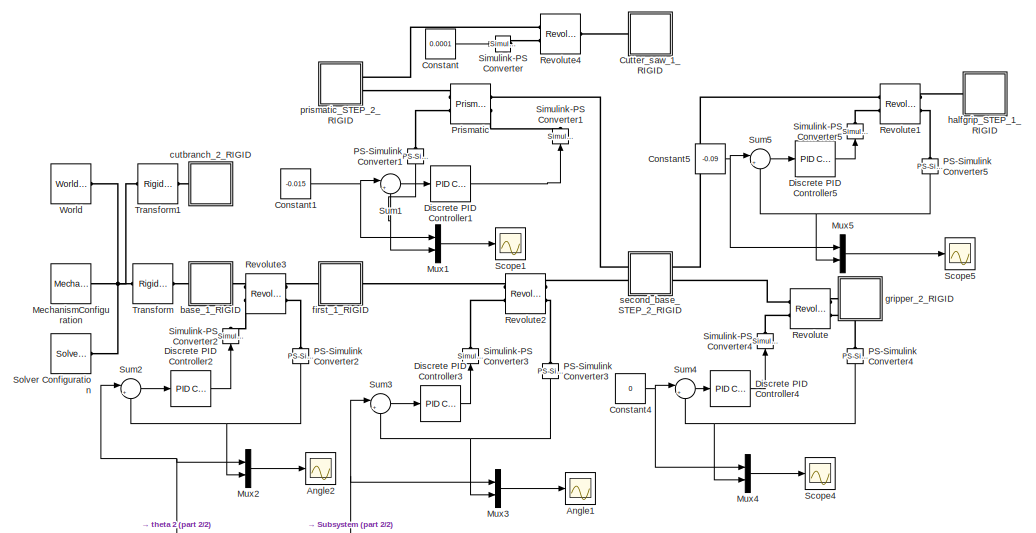
[diagram: root canvas - part 1/2, top right region]
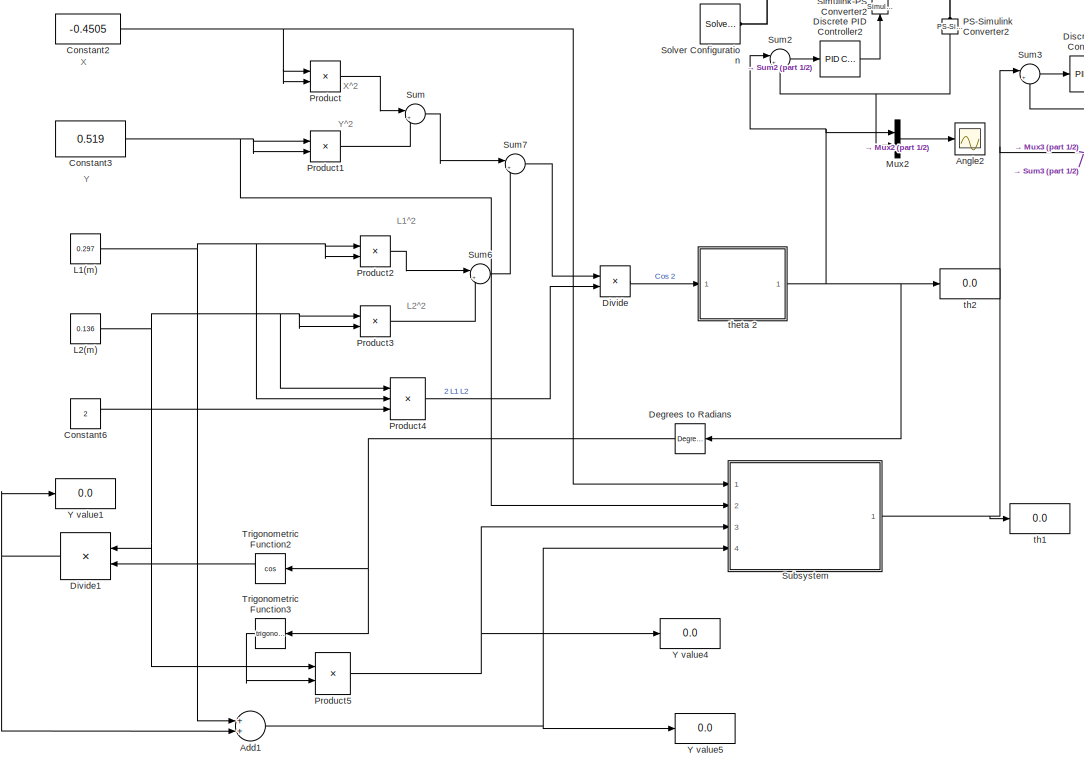
[diagram: root canvas - part 2/2, middle left region]
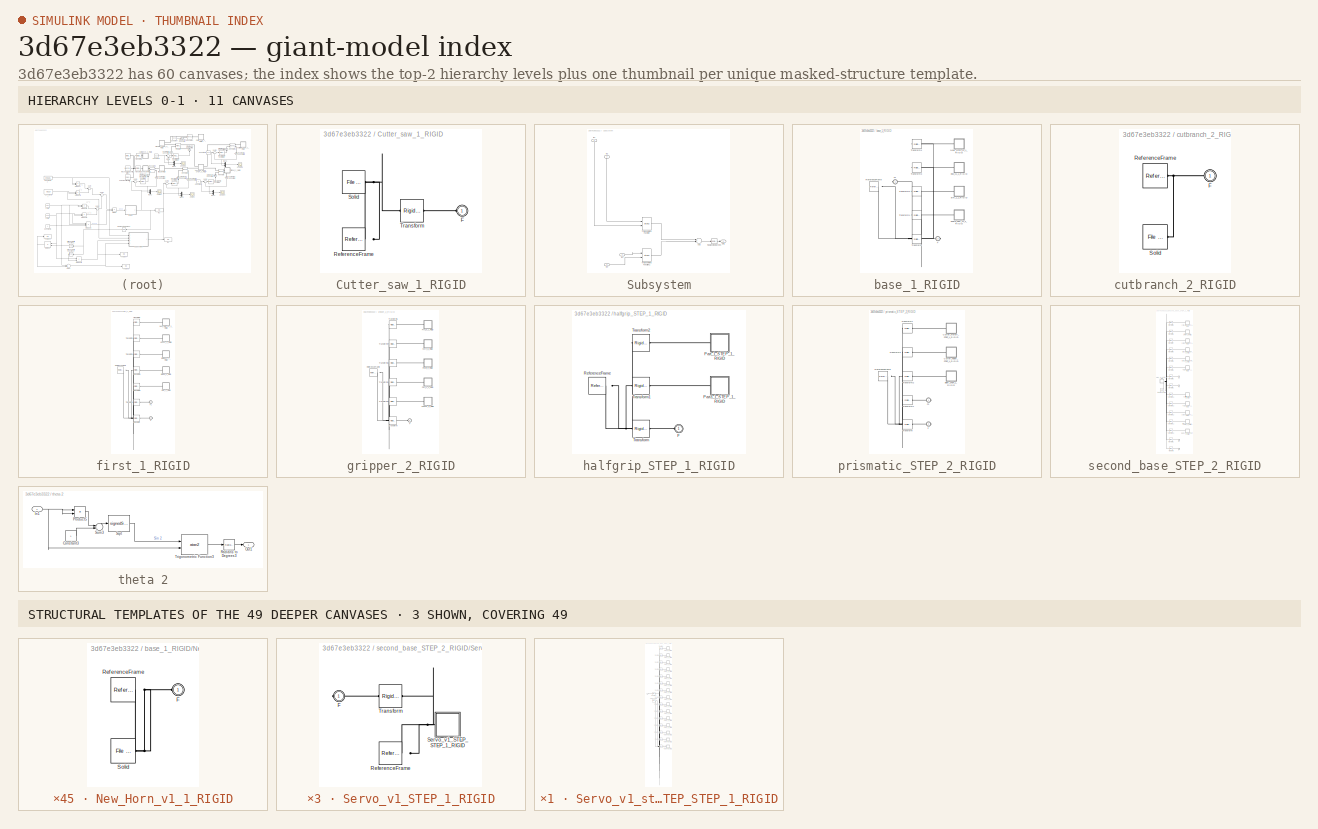
[diagram: thumbnail index - top-2 hierarchy levels (11 canvases) + 3 structural-template representatives of the remaining 49 canvases]
MODEL slx_3d67e3eb3322
KIND model
CONFIG AbsTol = auto
CONFIG EnableMultiTasking = off
CONFIG FixedStep = auto
CONFIG MaxStep = auto
CONFIG MinStep = auto
CONFIG RelTol = 1e-3
CONFIG SampleTimeConstraint = Unconstrained
CONFIG Solver = VariableStepAuto
CONFIG SolverName = VariableStepAuto
CONFIG StartTime = 0.0
CONFIG StopTime = 0.2
WORKSPACE source: external: MATLAB File  (data not in archive)
BLOCK [Sum] Add1
  InputSameDT = off
  OutDataTypeStr = Inherit: Inherit via internal rule
  Ports = [2, 1]
  SaturateOnIntegerOverflow = off
BLOCK [Scope] Angle1
  Floating = off
  NumInputPorts = 1
  Ports = [1]
  ScopeSpecificationString = Simulink.scopes.TimeScopeBlockCfg('CurrentConfiguration', extmgr.ConfigurationSet(extmgr.Configuration('Core','General UI',true,'FigureColor',[1 1 1]),extmgr.Configuration('Core','Source UI',true),extmgr.Configuration('Sources','WiredSimulink',true,'DataLoggingVariableName','ScopeData1'),extmgr.Configuration('Visuals','Time Domain',true,'SerializedDisplays',{struct('MinYLimReal','-19.35537','MaxYL...<+1663ch>
BLOCK [Scope] Angle2
  Floating = off
  NumInputPorts = 1
  Ports = [1]
  ScopeSpecificationString = Simulink.scopes.TimeScopeBlockCfg('CurrentConfiguration', extmgr.ConfigurationSet(extmgr.Configuration('Core','General UI',true,'FigureColor',[1 1 1]),extmgr.Configuration('Core','Source UI',true),extmgr.Configuration('Sources','WiredSimulink',true,'DataLoggingVariableName','ScopeData2'),extmgr.Configuration('Visuals','Time Domain',true,'SerializedDisplays',{struct('MinYLimReal','-52.32799','MaxYL...<+1657ch>
BLOCK [Constant] Constant
  Value = 0.0001
BLOCK [Constant] Constant1
  Value = -0.015
BLOCK [Constant] Constant2
  Value = -0.4505
BLOCK [Constant] Constant3
  Value = 0.519
BLOCK [Constant] Constant4
  Value = 0
BLOCK [Constant] Constant5
  Value = -0.09
BLOCK [Constant] Constant6
  Value = 2
BLOCK [SubSystem] Cutter_saw_1_RIGID
  Ports = [0, 0, 0, 0, 0, 1]
  RequestExecContextInheritance = off
BLOCK [PMIOPort] Cutter_saw_1_RIGID/F
  Side = Left
BLOCK [Reference] Cutter_saw_1_RIGID/ReferenceFrame  REF=sm_lib/Frames and
Transforms/Reference
Frame
  Ports = [0, 0, 0, 0, 0, 0, 1]
  SourceBlock = sm_lib/Frames and\nTransforms/Reference\nFrame
  SourceProductBaseCode = MS
  SourceProductName = Simscape Multibody
  SourceType = Reference\nFrame
BLOCK [Reference] Cutter_saw_1_RIGID/Solid  REF=sm_lib/Body Elements/File Solid
  Ports = [0, 0, 0, 0, 0, 0, 1]
  SourceBlock = sm_lib/Body Elements/File Solid
  SourceProductBaseCode = MS
  SourceProductName = Simscape Multibody
  SourceType = File Solid
BLOCK [Reference] Cutter_saw_1_RIGID/Transform  REF=sm_lib/Frames and
Transforms/Rigid
Transform
  Ports = [0, 0, 0, 0, 0, 1, 1]
  SourceBlock = sm_lib/Frames and\nTransforms/Rigid\nTransform
  SourceProductBaseCode = MS
  SourceProductName = Simscape Multibody
  SourceType = Rigid\nTransform
BLOCK [Reference] Degrees to Radians  REF=simulink_extras/Transformations/Degrees to
Radians
  Ports = [1, 1]
  SourceBlock = simulink_extras/Transformations/Degrees to\nRadians
  SourceProductBaseCode = SL
  SourceProductName = Simulink
  SourceType = DegreesToRadians
BLOCK [Reference] Discrete PID Controller1  REF=simulink/Continuous/PID Controller
  Ports = [1, 1]
  SourceBlock = simulink/Continuous/PID Controller
  SourceProductBaseCode = SL
  SourceProductName = Simulink
  SourceType = PID 1dof
BLOCK [Reference] Discrete PID Controller2  REF=simulink/Continuous/PID Controller
  Ports = [1, 1]
  SourceBlock = simulink/Continuous/PID Controller
  SourceProductBaseCode = SL
  SourceProductName = Simulink
  SourceType = PID 1dof
BLOCK [Reference] Discrete PID Controller3  REF=simulink/Continuous/PID Controller
  Ports = [1, 1]
  SourceBlock = simulink/Continuous/PID Controller
  SourceProductBaseCode = SL
  SourceProductName = Simulink
  SourceType = PID 1dof
BLOCK [Reference] Discrete PID Controller4  REF=simulink/Continuous/PID Controller
  Ports = [1, 1]
  SourceBlock = simulink/Continuous/PID Controller
  SourceProductBaseCode = SL
  SourceProductName = Simulink
  SourceType = PID 1dof
BLOCK [Reference] Discrete PID Controller5  REF=simulink/Continuous/PID Controller
  Ports = [1, 1]
  SourceBlock = simulink/Continuous/PID Controller
  SourceProductBaseCode = SL
  SourceProductName = Simulink
  SourceType = PID 1dof
BLOCK [Product] Divide
  InputSameDT = off
  Inputs = */
  OutDataTypeStr = Inherit: Inherit via internal rule
  Ports = [2, 1]
  RndMeth = Floor
  SaturateOnIntegerOverflow = off
BLOCK [Product] Divide1
  InputSameDT = off
  Inputs = **
  OutDataTypeStr = Inherit: Inherit via internal rule
  Ports = [2, 1]
  RndMeth = Floor
  SaturateOnIntegerOverflow = off
BLOCK [Constant] L1(m)
  Value = 0.297
BLOCK [Constant] L2(m)
  Value = 0.136
BLOCK [Reference] MechanismConfiguration  REF=sm_lib/Utilities/Mechanism
Configuration
  Ports = [0, 0, 0, 0, 0, 0, 1]
  SourceBlock = sm_lib/Utilities/Mechanism\nConfiguration
  SourceProductBaseCode = MS
  SourceProductName = Simscape Multibody
  SourceType = Mechanism\nConfiguration
BLOCK [Mux] Mux1
  DisplayOption = bar
  Inputs = 2
  Ports = [2, 1]
BLOCK [Mux] Mux2
  DisplayOption = bar
  Inputs = 2
  Ports = [2, 1]
BLOCK [Mux] Mux3
  DisplayOption = bar
  Inputs = 2
  Ports = [2, 1]
BLOCK [Mux] Mux4
  DisplayOption = bar
  Inputs = 2
  Ports = [2, 1]
BLOCK [Mux] Mux5
  DisplayOption = bar
  Inputs = 2
  Ports = [2, 1]
BLOCK [Reference] PS-Simulink Converter1  REF=nesl_utility/PS-Simulink
Converter
  Ports = [0, 1, 0, 0, 0, 1]
  SourceBlock = nesl_utility/PS-Simulink\nConverter
  SourceProductBaseCode = SS
  SourceProductName = Simscape
  SourceType = PS-Simulink\nConverter
BLOCK [Reference] PS-Simulink Converter2  REF=nesl_utility/PS-Simulink
Converter
  Ports = [0, 1, 0, 0, 0, 1]
  SourceBlock = nesl_utility/PS-Simulink\nConverter
  SourceProductBaseCode = SS
  SourceProductName = Simscape
  SourceType = PS-Simulink\nConverter
BLOCK [Reference] PS-Simulink Converter3  REF=nesl_utility/PS-Simulink
Converter
  Ports = [0, 1, 0, 0, 0, 1]
  SourceBlock = nesl_utility/PS-Simulink\nConverter
  SourceProductBaseCode = SS
  SourceProductName = Simscape
  SourceType = PS-Simulink\nConverter
BLOCK [Reference] PS-Simulink Converter4  REF=nesl_utility/PS-Simulink
Converter
  Ports = [0, 1, 0, 0, 0, 1]
  SourceBlock = nesl_utility/PS-Simulink\nConverter
  SourceProductBaseCode = SS
  SourceProductName = Simscape
  SourceType = PS-Simulink\nConverter
BLOCK [Reference] PS-Simulink Converter5  REF=nesl_utility/PS-Simulink
Converter
  Ports = [0, 1, 0, 0, 0, 1]
  SourceBlock = nesl_utility/PS-Simulink\nConverter
  SourceProductBaseCode = SS
  SourceProductName = Simscape
  SourceType = PS-Simulink\nConverter
BLOCK [Reference] Prismatic  REF=sm_lib/Joints/Prismatic
Joint
  Ports = [0, 0, 0, 0, 0, 2, 2]
  SourceBlock = sm_lib/Joints/Prismatic\nJoint
  SourceProductBaseCode = MS
  SourceProductName = Simscape Multibody
  SourceType = Prismatic\nJoint
BLOCK [Product] Product
  InputSameDT = off
  OutDataTypeStr = Inherit: Inherit via internal rule
  Ports = [2, 1]
  RndMeth = Floor
  SaturateOnIntegerOverflow = off
BLOCK [Product] Product1
  InputSameDT = off
  OutDataTypeStr = Inherit: Inherit via internal rule
  Ports = [2, 1]
  RndMeth = Floor
  SaturateOnIntegerOverflow = off
BLOCK [Product] Product2
  InputSameDT = off
  OutDataTypeStr = Inherit: Inherit via internal rule
  Ports = [2, 1]
  RndMeth = Floor
  SaturateOnIntegerOverflow = off
BLOCK [Product] Product3
  InputSameDT = off
  OutDataTypeStr = Inherit: Inherit via internal rule
  Ports = [2, 1]
  RndMeth = Floor
  SaturateOnIntegerOverflow = off
BLOCK [Product] Product4
  InputSameDT = off
  Inputs = 3
  OutDataTypeStr = Inherit: Inherit via internal rule
  Ports = [3, 1]
  RndMeth = Floor
  SaturateOnIntegerOverflow = off
BLOCK [Product] Product5
  InputSameDT = off
  OutDataTypeStr = Inherit: Inherit via internal rule
  Ports = [2, 1]
  RndMeth = Floor
  SaturateOnIntegerOverflow = off
BLOCK [Reference] Revolute  REF=sm_lib/Joints/Revolute Joint
  Ports = [0, 0, 0, 0, 0, 2, 2]
  SourceBlock = sm_lib/Joints/Revolute Joint
  SourceProductBaseCode = MS
  SourceProductName = Simscape Multibody
  SourceType = Revolute Joint
BLOCK [Reference] Revolute1  REF=sm_lib/Joints/Revolute Joint
  Ports = [0, 0, 0, 0, 0, 2, 2]
  SourceBlock = sm_lib/Joints/Revolute Joint
  SourceProductBaseCode = MS
  SourceProductName = Simscape Multibody
  SourceType = Revolute Joint
BLOCK [Reference] Revolute2  REF=sm_lib/Joints/Revolute Joint
  Ports = [0, 0, 0, 0, 0, 2, 2]
  SourceBlock = sm_lib/Joints/Revolute Joint
  SourceProductBaseCode = MS
  SourceProductName = Simscape Multibody
  SourceType = Revolute Joint
BLOCK [Reference] Revolute3  REF=sm_lib/Joints/Revolute Joint
  Ports = [0, 0, 0, 0, 0, 2, 2]
  SourceBlock = sm_lib/Joints/Revolute Joint
  SourceProductBaseCode = MS
  SourceProductName = Simscape Multibody
  SourceType = Revolute Joint
BLOCK [Reference] Revolute4  REF=sm_lib/Joints/Revolute Joint
  Ports = [0, 0, 0, 0, 0, 2, 1]
  SourceBlock = sm_lib/Joints/Revolute Joint
  SourceProductBaseCode = MS
  SourceProductName = Simscape Multibody
  SourceType = Revolute Joint
BLOCK [Scope] Scope1
  Floating = off
  NumInputPorts = 1
  Ports = [1]
  ScopeSpecificationString = Simulink.scopes.TimeScopeBlockCfg('CurrentConfiguration', extmgr.ConfigurationSet(extmgr.Configuration('Core','General UI',true),extmgr.Configuration('Core','Source UI',true),extmgr.Configuration('Sources','WiredSimulink',true,'DataLoggingVariableName','ScopeData1'),extmgr.Configuration('Visuals','Time Domain',true,'SerializedDisplays',{struct('MinYLimReal','-6.25054','MaxYLimReal','56.25484','YLa...<+1398ch>
BLOCK [Scope] Scope4
  Floating = off
  NumInputPorts = 1
  Ports = [1]
  ScopeSpecificationString = Simulink.scopes.TimeScopeBlockCfg('CurrentConfiguration', extmgr.ConfigurationSet(extmgr.Configuration('Core','General UI',true),extmgr.Configuration('Core','Source UI',true),extmgr.Configuration('Sources','WiredSimulink',true,'DataLoggingVariableName','ScopeData4'),extmgr.Configuration('Visuals','Time Domain',true,'SerializedDisplays',{struct('MinYLimReal','-6.25054','MaxYLimReal','56.25484','YLa...<+1398ch>
BLOCK [Scope] Scope5
  Floating = off
  NumInputPorts = 1
  Ports = [1]
  ScopeSpecificationString = Simulink.scopes.TimeScopeBlockCfg('CurrentConfiguration', extmgr.ConfigurationSet(extmgr.Configuration('Core','General UI',true),extmgr.Configuration('Core','Source UI',true),extmgr.Configuration('Sources','WiredSimulink',true,'DataLoggingVariableName','ScopeData5'),extmgr.Configuration('Visuals','Time Domain',true,'SerializedDisplays',{struct('MinYLimReal','-6.25054','MaxYLimReal','56.25484','YLa...<+1398ch>
BLOCK [Reference] Simulink-PS Converter  REF=nesl_utility/Simulink-PS
Converter
  Ports = [1, 0, 0, 0, 0, 0, 1]
  SourceBlock = nesl_utility/Simulink-PS\nConverter
  SourceProductBaseCode = SS
  SourceProductName = Simscape
  SourceType = Simulink-PS\nConverter
BLOCK [Reference] Simulink-PS Converter1  REF=nesl_utility/Simulink-PS
Converter
  Ports = [1, 0, 0, 0, 0, 0, 1]
  SourceBlock = nesl_utility/Simulink-PS\nConverter
  SourceProductBaseCode = SS
  SourceProductName = Simscape
  SourceType = Simulink-PS\nConverter
BLOCK [Reference] Simulink-PS Converter2  REF=nesl_utility/Simulink-PS
Converter
  Ports = [1, 0, 0, 0, 0, 0, 1]
  SourceBlock = nesl_utility/Simulink-PS\nConverter
  SourceProductBaseCode = SS
  SourceProductName = Simscape
  SourceType = Simulink-PS\nConverter
BLOCK [Reference] Simulink-PS Converter3  REF=nesl_utility/Simulink-PS
Converter
  Ports = [1, 0, 0, 0, 0, 0, 1]
  SourceBlock = nesl_utility/Simulink-PS\nConverter
  SourceProductBaseCode = SS
  SourceProductName = Simscape
  SourceType = Simulink-PS\nConverter
BLOCK [Reference] Simulink-PS Converter4  REF=nesl_utility/Simulink-PS
Converter
  Ports = [1, 0, 0, 0, 0, 0, 1]
  SourceBlock = nesl_utility/Simulink-PS\nConverter
  SourceProductBaseCode = SS
  SourceProductName = Simscape
  SourceType = Simulink-PS\nConverter
BLOCK [Reference] Simulink-PS Converter5  REF=nesl_utility/Simulink-PS
Converter
  Ports = [1, 0, 0, 0, 0, 0, 1]
  SourceBlock = nesl_utility/Simulink-PS\nConverter
  SourceProductBaseCode = SS
  SourceProductName = Simscape
  SourceType = Simulink-PS\nConverter
BLOCK [Reference] Solver Configuration  REF=nesl_utility/Solver
Configuration
  Ports = [0, 0, 0, 0, 0, 0, 1]
  SourceBlock = nesl_utility/Solver\nConfiguration
  SourceProductBaseCode = SS
  SourceProductName = Simscape
  SourceType = Solver\nConfiguration
BLOCK [SubSystem] Subsystem
  Ports = [4, 1]
  RequestExecContextInheritance = off
BLOCK [Sum] Subsystem/Add
  InputSameDT = off
  Inputs = +-
  OutDataTypeStr = Inherit: Inherit via internal rule
  Ports = [2, 1]
  SaturateOnIntegerOverflow = off
BLOCK [Inport] Subsystem/In1
  IconDisplay = Port number
BLOCK [Inport] Subsystem/In2
  IconDisplay = Port number
  Port = 2
BLOCK [Inport] Subsystem/In3
  IconDisplay = Port number
  Port = 3
BLOCK [Inport] Subsystem/In4
  IconDisplay = Port number
  Port = 4
BLOCK [Outport] Subsystem/Out1
  IconDisplay = Port number
BLOCK [Reference] Subsystem/Radians to Degrees  REF=simulink_extras/Transformations/Radians
to Degrees
  Ports = [1, 1]
  SourceBlock = simulink_extras/Transformations/Radians\nto Degrees
  SourceProductBaseCode = SL
  SourceProductName = Simulink
  SourceType = RadiansToDegrees
BLOCK [Trigonometry] Subsystem/Trigonometric Function
  Operator = atan2
  Ports = [2, 1]
BLOCK [Trigonometry] Subsystem/Trigonometric Function1
  Operator = atan2
  Ports = [2, 1]
BLOCK [Sum] Sum
  IconShape = round
  InputSameDT = off
  Inputs = |++
  OutDataTypeStr = Inherit: Inherit via internal rule
  Ports = [2, 1]
  SaturateOnIntegerOverflow = off
BLOCK [Sum] Sum1
  IconShape = round
  InputSameDT = off
  Inputs = |+-
  OutDataTypeStr = Inherit: Inherit via internal rule
  Ports = [2, 1]
  SaturateOnIntegerOverflow = off
BLOCK [Sum] Sum2
  IconShape = round
  InputSameDT = off
  Inputs = |+-
  OutDataTypeStr = Inherit: Inherit via internal rule
  Ports = [2, 1]
  SaturateOnIntegerOverflow = off
BLOCK [Sum] Sum3
  IconShape = round
  InputSameDT = off
  Inputs = |+-
  OutDataTypeStr = Inherit: Inherit via internal rule
  Ports = [2, 1]
  SaturateOnIntegerOverflow = off
BLOCK [Sum] Sum4
  IconShape = round
  InputSameDT = off
  Inputs = |+-
  OutDataTypeStr = Inherit: Inherit via internal rule
  Ports = [2, 1]
  SaturateOnIntegerOverflow = off
BLOCK [Sum] Sum5
  IconShape = round
  InputSameDT = off
  Inputs = |+-
  OutDataTypeStr = Inherit: Inherit via internal rule
  Ports = [2, 1]
  SaturateOnIntegerOverflow = off
BLOCK [Sum] Sum6
  IconShape = round
  InputSameDT = off
  Inputs = |++
  OutDataTypeStr = Inherit: Inherit via internal rule
  Ports = [2, 1]
  SaturateOnIntegerOverflow = off
BLOCK [Sum] Sum7
  IconShape = round
  InputSameDT = off
  Inputs = |+-
  OutDataTypeStr = Inherit: Inherit via internal rule
  Ports = [2, 1]
  SaturateOnIntegerOverflow = off
BLOCK [Reference] Transform  REF=sm_lib/Frames and
Transforms/Rigid
Transform
  Ports = [0, 0, 0, 0, 0, 1, 1]
  SourceBlock = sm_lib/Frames and\nTransforms/Rigid\nTransform
  SourceProductBaseCode = MS
  SourceProductName = Simscape Multibody
  SourceType = Rigid\nTransform
BLOCK [Reference] Transform1  REF=sm_lib/Frames and
Transforms/Rigid
Transform
  Ports = [0, 0, 0, 0, 0, 1, 1]
  SourceBlock = sm_lib/Frames and\nTransforms/Rigid\nTransform
  SourceProductBaseCode = MS
  SourceProductName = Simscape Multibody
  SourceType = Rigid\nTransform
BLOCK [Trigonometry] Trigonometric Function2
  Operator = cos
  Ports = [1, 1]
BLOCK [Trigonometry] Trigonometric Function3
  Ports = [1, 1]
BLOCK [Reference] World  REF=sm_lib/Frames and
Transforms/World Frame
  Ports = [0, 0, 0, 0, 0, 0, 1]
  SourceBlock = sm_lib/Frames and\nTransforms/World Frame
  SourceProductBaseCode = MS
  SourceProductName = Simscape Multibody
  SourceType = World Frame
BLOCK [Display] Y value1
  Decimation = 1
  Ports = [1]
BLOCK [Display] Y value4
  Decimation = 1
  Ports = [1]
BLOCK [Display] Y value5
  Decimation = 1
  Ports = [1]
BLOCK [SubSystem] base_1_RIGID
  Ports = [0, 0, 0, 0, 0, 1, 1]
  RequestExecContextInheritance = off
BLOCK [PMIOPort] base_1_RIGID/F
  Port = 2
  Side = Right
BLOCK [PMIOPort] base_1_RIGID/F1
  Side = Left
BLOCK [SubSystem] base_1_RIGID/New_Horn_v1_1_RIGID
  Ports = [0, 0, 0, 0, 0, 1]
  RequestExecContextInheritance = off
BLOCK [PMIOPort] base_1_RIGID/New_Horn_v1_1_RIGID/F
  Side = Left
BLOCK [Reference] base_1_RIGID/New_Horn_v1_1_RIGID/ReferenceFrame  REF=sm_lib/Frames and
Transforms/Reference
Frame
  Ports = [0, 0, 0, 0, 0, 0, 1]
  SourceBlock = sm_lib/Frames and\nTransforms/Reference\nFrame
  SourceProductBaseCode = MS
  SourceProductName = Simscape Multibody
  SourceType = Reference\nFrame
BLOCK [Reference] base_1_RIGID/New_Horn_v1_1_RIGID/Solid  REF=sm_lib/Body Elements/File Solid
  Ports = [0, 0, 0, 0, 0, 0, 1]
  SourceBlock = sm_lib/Body Elements/File Solid
  SourceProductBaseCode = MS
  SourceProductName = Simscape Multibody
  SourceType = File Solid
BLOCK [Reference] base_1_RIGID/ReferenceFrame  REF=sm_lib/Frames and
Transforms/Reference
Frame
  Ports = [0, 0, 0, 0, 0, 0, 1]
  SourceBlock = sm_lib/Frames and\nTransforms/Reference\nFrame
  SourceProductBaseCode = MS
  SourceProductName = Simscape Multibody
  SourceType = Reference\nFrame
BLOCK [Reference] base_1_RIGID/Transform  REF=sm_lib/Frames and
Transforms/Rigid
Transform
  Ports = [0, 0, 0, 0, 0, 1, 1]
  SourceBlock = sm_lib/Frames and\nTransforms/Rigid\nTransform
  SourceProductBaseCode = MS
  SourceProductName = Simscape Multibody
  SourceType = Rigid\nTransform
BLOCK [Reference] base_1_RIGID/Transform1  REF=sm_lib/Frames and
Transforms/Rigid
Transform
  Ports = [0, 0, 0, 0, 0, 1, 1]
  SourceBlock = sm_lib/Frames and\nTransforms/Rigid\nTransform
  SourceProductBaseCode = MS
  SourceProductName = Simscape Multibody
  SourceType = Rigid\nTransform
BLOCK [Reference] base_1_RIGID/Transform2  REF=sm_lib/Frames and
Transforms/Rigid
Transform
  Ports = [0, 0, 0, 0, 0, 1, 1]
  SourceBlock = sm_lib/Frames and\nTransforms/Rigid\nTransform
  SourceProductBaseCode = MS
  SourceProductName = Simscape Multibody
  SourceType = Rigid\nTransform
BLOCK [Reference] base_1_RIGID/Transform3  REF=sm_lib/Frames and
Transforms/Rigid
Transform
  Ports = [0, 0, 0, 0, 0, 1, 1]
  SourceBlock = sm_lib/Frames and\nTransforms/Rigid\nTransform
  SourceProductBaseCode = MS
  SourceProductName = Simscape Multibody
  SourceType = Rigid\nTransform
BLOCK [Reference] base_1_RIGID/Transform4  REF=sm_lib/Frames and
Transforms/Rigid
Transform
  Ports = [0, 0, 0, 0, 0, 1, 1]
  SourceBlock = sm_lib/Frames and\nTransforms/Rigid\nTransform
  SourceProductBaseCode = MS
  SourceProductName = Simscape Multibody
  SourceType = Rigid\nTransform
BLOCK [SubSystem] base_1_RIGID/arm_1_1_RIGID
  Ports = [0, 0, 0, 0, 0, 1]
  RequestExecContextInheritance = off
BLOCK [PMIOPort] base_1_RIGID/arm_1_1_RIGID/F
  Side = Left
BLOCK [Reference] base_1_RIGID/arm_1_1_RIGID/ReferenceFrame  REF=sm_lib/Frames and
Transforms/Reference
Frame
  Ports = [0, 0, 0, 0, 0, 0, 1]
  SourceBlock = sm_lib/Frames and\nTransforms/Reference\nFrame
  SourceProductBaseCode = MS
  SourceProductName = Simscape Multibody
  SourceType = Reference\nFrame
BLOCK [Reference] base_1_RIGID/arm_1_1_RIGID/Solid  REF=sm_lib/Body Elements/File Solid
  Ports = [0, 0, 0, 0, 0, 0, 1]
  SourceBlock = sm_lib/Body Elements/File Solid
  SourceProductBaseCode = MS
  SourceProductName = Simscape Multibody
  SourceType = File Solid
BLOCK [SubSystem] base_1_RIGID/board_new_v1_4_RIGID
  Ports = [0, 0, 0, 0, 0, 1]
  RequestExecContextInheritance = off
BLOCK [PMIOPort] base_1_RIGID/board_new_v1_4_RIGID/F
  Side = Left
BLOCK [Reference] base_1_RIGID/board_new_v1_4_RIGID/ReferenceFrame  REF=sm_lib/Frames and
Transforms/Reference
Frame
  Ports = [0, 0, 0, 0, 0, 0, 1]
  SourceBlock = sm_lib/Frames and\nTransforms/Reference\nFrame
  SourceProductBaseCode = MS
  SourceProductName = Simscape Multibody
  SourceType = Reference\nFrame
BLOCK [Reference] base_1_RIGID/board_new_v1_4_RIGID/Solid  REF=sm_lib/Body Elements/File Solid
  Ports = [0, 0, 0, 0, 0, 0, 1]
  SourceBlock = sm_lib/Body Elements/File Solid
  SourceProductBaseCode = MS
  SourceProductName = Simscape Multibody
  SourceType = File Solid
BLOCK [SubSystem] base_1_RIGID/kiso_v1_1_RIGID
  Ports = [0, 0, 0, 0, 0, 1]
  RequestExecContextInheritance = off
BLOCK [PMIOPort] base_1_RIGID/kiso_v1_1_RIGID/F
  Side = Left
BLOCK [Reference] base_1_RIGID/kiso_v1_1_RIGID/ReferenceFrame  REF=sm_lib/Frames and
Transforms/Reference
Frame
  Ports = [0, 0, 0, 0, 0, 0, 1]
  SourceBlock = sm_lib/Frames and\nTransforms/Reference\nFrame
  SourceProductBaseCode = MS
  SourceProductName = Simscape Multibody
  SourceType = Reference\nFrame
BLOCK [Reference] base_1_RIGID/kiso_v1_1_RIGID/Solid  REF=sm_lib/Body Elements/File Solid
  Ports = [0, 0, 0, 0, 0, 0, 1]
  SourceBlock = sm_lib/Body Elements/File Solid
  SourceProductBaseCode = MS
  SourceProductName = Simscape Multibody
  SourceType = File Solid
BLOCK [SubSystem] cutbranch_2_RIGID
  Ports = [0, 0, 0, 0, 0, 1]
  RequestExecContextInheritance = off
BLOCK [PMIOPort] cutbranch_2_RIGID/F
  Side = Left
BLOCK [Reference] cutbranch_2_RIGID/ReferenceFrame  REF=sm_lib/Frames and
Transforms/Reference
Frame
  Ports = [0, 0, 0, 0, 0, 0, 1]
  SourceBlock = sm_lib/Frames and\nTransforms/Reference\nFrame
  SourceProductBaseCode = MS
  SourceProductName = Simscape Multibody
  SourceType = Reference\nFrame
BLOCK [Reference] cutbranch_2_RIGID/Solid  REF=sm_lib/Body Elements/File Solid
  Ports = [0, 0, 0, 0, 0, 0, 1]
  SourceBlock = sm_lib/Body Elements/File Solid
  SourceProductBaseCode = MS
  SourceProductName = Simscape Multibody
  SourceType = File Solid
BLOCK [SubSystem] first_1_RIGID
  Ports = [0, 0, 0, 0, 0, 1, 1]
  RequestExecContextInheritance = off
BLOCK [PMIOPort] first_1_RIGID/F
  Port = 2
  Side = Right
BLOCK [PMIOPort] first_1_RIGID/F1
  Side = Left
BLOCK [SubSystem] first_1_RIGID/New_Horn_v1_3_RIGID
  Ports = [0, 0, 0, 0, 0, 1]
  RequestExecContextInheritance = off
BLOCK [PMIOPort] first_1_RIGID/New_Horn_v1_3_RIGID/F
  Side = Left
BLOCK [Reference] first_1_RIGID/New_Horn_v1_3_RIGID/ReferenceFrame  REF=sm_lib/Frames and
Transforms/Reference
Frame
  Ports = [0, 0, 0, 0, 0, 0, 1]
  SourceBlock = sm_lib/Frames and\nTransforms/Reference\nFrame
  SourceProductBaseCode = MS
  SourceProductName = Simscape Multibody
  SourceType = Reference\nFrame
BLOCK [Reference] first_1_RIGID/New_Horn_v1_3_RIGID/Solid  REF=sm_lib/Body Elements/File Solid
  Ports = [0, 0, 0, 0, 0, 0, 1]
  SourceBlock = sm_lib/Body Elements/File Solid
  SourceProductBaseCode = MS
  SourceProductName = Simscape Multibody
  SourceType = File Solid
BLOCK [Reference] first_1_RIGID/ReferenceFrame  REF=sm_lib/Frames and
Transforms/Reference
Frame
  Ports = [0, 0, 0, 0, 0, 0, 1]
  SourceBlock = sm_lib/Frames and\nTransforms/Reference\nFrame
  SourceProductBaseCode = MS
  SourceProductName = Simscape Multibody
  SourceType = Reference\nFrame
BLOCK [Reference] first_1_RIGID/Transform  REF=sm_lib/Frames and
Transforms/Rigid
Transform
  Ports = [0, 0, 0, 0, 0, 1, 1]
  SourceBlock = sm_lib/Frames and\nTransforms/Rigid\nTransform
  SourceProductBaseCode = MS
  SourceProductName = Simscape Multibody
  SourceType = Rigid\nTransform
BLOCK [Reference] first_1_RIGID/Transform1  REF=sm_lib/Frames and
Transforms/Rigid
Transform
  Ports = [0, 0, 0, 0, 0, 1, 1]
  SourceBlock = sm_lib/Frames and\nTransforms/Rigid\nTransform
  SourceProductBaseCode = MS
  SourceProductName = Simscape Multibody
  SourceType = Rigid\nTransform
BLOCK [Reference] first_1_RIGID/Transform2  REF=sm_lib/Frames and
Transforms/Rigid
Transform
  Ports = [0, 0, 0, 0, 0, 1, 1]
  SourceBlock = sm_lib/Frames and\nTransforms/Rigid\nTransform
  SourceProductBaseCode = MS
  SourceProductName = Simscape Multibody
  SourceType = Rigid\nTransform
BLOCK [Reference] first_1_RIGID/Transform3  REF=sm_lib/Frames and
Transforms/Rigid
Transform
  Ports = [0, 0, 0, 0, 0, 1, 1]
  SourceBlock = sm_lib/Frames and\nTransforms/Rigid\nTransform
  SourceProductBaseCode = MS
  SourceProductName = Simscape Multibody
  SourceType = Rigid\nTransform
BLOCK [Reference] first_1_RIGID/Transform4  REF=sm_lib/Frames and
Transforms/Rigid
Transform
  Ports = [0, 0, 0, 0, 0, 1, 1]
  SourceBlock = sm_lib/Frames and\nTransforms/Rigid\nTransform
  SourceProductBaseCode = MS
  SourceProductName = Simscape Multibody
  SourceType = Rigid\nTransform
BLOCK [Reference] first_1_RIGID/Transform5  REF=sm_lib/Frames and
Transforms/Rigid
Transform
  Ports = [0, 0, 0, 0, 0, 1, 1]
  SourceBlock = sm_lib/Frames and\nTransforms/Rigid\nTransform
  SourceProductBaseCode = MS
  SourceProductName = Simscape Multibody
  SourceType = Rigid\nTransform
BLOCK [Reference] first_1_RIGID/Transform6  REF=sm_lib/Frames and
Transforms/Rigid
Transform
  Ports = [0, 0, 0, 0, 0, 1, 1]
  SourceBlock = sm_lib/Frames and\nTransforms/Rigid\nTransform
  SourceProductBaseCode = MS
  SourceProductName = Simscape Multibody
  SourceType = Rigid\nTransform
BLOCK [SubSystem] first_1_RIGID/arm2_1_RIGID
  Ports = [0, 0, 0, 0, 0, 1]
  RequestExecContextInheritance = off
BLOCK [PMIOPort] first_1_RIGID/arm2_1_RIGID/F
  Side = Left
BLOCK [Reference] first_1_RIGID/arm2_1_RIGID/ReferenceFrame  REF=sm_lib/Frames and
Transforms/Reference
Frame
  Ports = [0, 0, 0, 0, 0, 0, 1]
  SourceBlock = sm_lib/Frames and\nTransforms/Reference\nFrame
  SourceProductBaseCode = MS
  SourceProductName = Simscape Multibody
  SourceType = Reference\nFrame
BLOCK [Reference] first_1_RIGID/arm2_1_RIGID/Solid  REF=sm_lib/Body Elements/File Solid
  Ports = [0, 0, 0, 0, 0, 0, 1]
  SourceBlock = sm_lib/Body Elements/File Solid
  SourceProductBaseCode = MS
  SourceProductName = Simscape Multibody
  SourceType = File Solid
BLOCK [SubSystem] first_1_RIGID/kisov1_2_RIGID
  Ports = [0, 0, 0, 0, 0, 1]
  RequestExecContextInheritance = off
BLOCK [PMIOPort] first_1_RIGID/kisov1_2_RIGID/F
  Side = Left
BLOCK [Reference] first_1_RIGID/kisov1_2_RIGID/ReferenceFrame  REF=sm_lib/Frames and
Transforms/Reference
Frame
  Ports = [0, 0, 0, 0, 0, 0, 1]
  SourceBlock = sm_lib/Frames and\nTransforms/Reference\nFrame
  SourceProductBaseCode = MS
  SourceProductName = Simscape Multibody
  SourceType = Reference\nFrame
BLOCK [Reference] first_1_RIGID/kisov1_2_RIGID/Solid  REF=sm_lib/Body Elements/File Solid
  Ports = [0, 0, 0, 0, 0, 0, 1]
  SourceBlock = sm_lib/Body Elements/File Solid
  SourceProductBaseCode = MS
  SourceProductName = Simscape Multibody
  SourceType = File Solid
BLOCK [SubSystem] first_1_RIGID/retainer_1_1_RIGID
  Ports = [0, 0, 0, 0, 0, 1]
  RequestExecContextInheritance = off
BLOCK [PMIOPort] first_1_RIGID/retainer_1_1_RIGID/F
  Side = Left
BLOCK [Reference] first_1_RIGID/retainer_1_1_RIGID/ReferenceFrame  REF=sm_lib/Frames and
Transforms/Reference
Frame
  Ports = [0, 0, 0, 0, 0, 0, 1]
  SourceBlock = sm_lib/Frames and\nTransforms/Reference\nFrame
  SourceProductBaseCode = MS
  SourceProductName = Simscape Multibody
  SourceType = Reference\nFrame
BLOCK [Reference] first_1_RIGID/retainer_1_1_RIGID/Solid  REF=sm_lib/Body Elements/File Solid
  Ports = [0, 0, 0, 0, 0, 0, 1]
  SourceBlock = sm_lib/Body Elements/File Solid
  SourceProductBaseCode = MS
  SourceProductName = Simscape Multibody
  SourceType = File Solid
BLOCK [SubSystem] first_1_RIGID/retainer_1_RIGID
  Ports = [0, 0, 0, 0, 0, 1]
  RequestExecContextInheritance = off
BLOCK [PMIOPort] first_1_RIGID/retainer_1_RIGID/F
  Side = Left
BLOCK [Reference] first_1_RIGID/retainer_1_RIGID/ReferenceFrame  REF=sm_lib/Frames and
Transforms/Reference
Frame
  Ports = [0, 0, 0, 0, 0, 0, 1]
  SourceBlock = sm_lib/Frames and\nTransforms/Reference\nFrame
  SourceProductBaseCode = MS
  SourceProductName = Simscape Multibody
  SourceType = Reference\nFrame
BLOCK [Reference] first_1_RIGID/retainer_1_RIGID/Solid  REF=sm_lib/Body Elements/File Solid
  Ports = [0, 0, 0, 0, 0, 0, 1]
  SourceBlock = sm_lib/Body Elements/File Solid
  SourceProductBaseCode = MS
  SourceProductName = Simscape Multibody
  SourceType = File Solid
BLOCK [SubSystem] gripper_2_RIGID
  Ports = [0, 0, 0, 0, 0, 1]
  RequestExecContextInheritance = off
BLOCK [PMIOPort] gripper_2_RIGID/F
  Side = Left
BLOCK [SubSystem] gripper_2_RIGID/PArt_9_1_RIGID
  Ports = [0, 0, 0, 0, 0, 1]
  RequestExecContextInheritance = off
BLOCK [PMIOPort] gripper_2_RIGID/PArt_9_1_RIGID/F
  Side = Left
BLOCK [Reference] gripper_2_RIGID/PArt_9_1_RIGID/ReferenceFrame  REF=sm_lib/Frames and
Transforms/Reference
Frame
  Ports = [0, 0, 0, 0, 0, 0, 1]
  SourceBlock = sm_lib/Frames and\nTransforms/Reference\nFrame
  SourceProductBaseCode = MS
  SourceProductName = Simscape Multibody
  SourceType = Reference\nFrame
BLOCK [Reference] gripper_2_RIGID/PArt_9_1_RIGID/Solid  REF=sm_lib/Body Elements/File Solid
  Ports = [0, 0, 0, 0, 0, 0, 1]
  SourceBlock = sm_lib/Body Elements/File Solid
  SourceProductBaseCode = MS
  SourceProductName = Simscape Multibody
  SourceType = File Solid
BLOCK [SubSystem] gripper_2_RIGID/Part3_2_RIGID
  Ports = [0, 0, 0, 0, 0, 1]
  RequestExecContextInheritance = off
BLOCK [PMIOPort] gripper_2_RIGID/Part3_2_RIGID/F
  Side = Left
BLOCK [Reference] gripper_2_RIGID/Part3_2_RIGID/ReferenceFrame  REF=sm_lib/Frames and
Transforms/Reference
Frame
  Ports = [0, 0, 0, 0, 0, 0, 1]
  SourceBlock = sm_lib/Frames and\nTransforms/Reference\nFrame
  SourceProductBaseCode = MS
  SourceProductName = Simscape Multibody
  SourceType = Reference\nFrame
BLOCK [Reference] gripper_2_RIGID/Part3_2_RIGID/Solid  REF=sm_lib/Body Elements/File Solid
  Ports = [0, 0, 0, 0, 0, 0, 1]
  SourceBlock = sm_lib/Body Elements/File Solid
  SourceProductBaseCode = MS
  SourceProductName = Simscape Multibody
  SourceType = File Solid
BLOCK [SubSystem] gripper_2_RIGID/Part_2_3_RIGID
  Ports = [0, 0, 0, 0, 0, 1]
  RequestExecContextInheritance = off
BLOCK [PMIOPort] gripper_2_RIGID/Part_2_3_RIGID/F
  Side = Left
BLOCK [Reference] gripper_2_RIGID/Part_2_3_RIGID/ReferenceFrame  REF=sm_lib/Frames and
Transforms/Reference
Frame
  Ports = [0, 0, 0, 0, 0, 0, 1]
  SourceBlock = sm_lib/Frames and\nTransforms/Reference\nFrame
  SourceProductBaseCode = MS
  SourceProductName = Simscape Multibody
  SourceType = Reference\nFrame
BLOCK [Reference] gripper_2_RIGID/Part_2_3_RIGID/Solid  REF=sm_lib/Body Elements/File Solid
  Ports = [0, 0, 0, 0, 0, 0, 1]
  SourceBlock = sm_lib/Body Elements/File Solid
  SourceProductBaseCode = MS
  SourceProductName = Simscape Multibody
  SourceType = File Solid
BLOCK [Reference] gripper_2_RIGID/ReferenceFrame  REF=sm_lib/Frames and
Transforms/Reference
Frame
  Ports = [0, 0, 0, 0, 0, 0, 1]
  SourceBlock = sm_lib/Frames and\nTransforms/Reference\nFrame
  SourceProductBaseCode = MS
  SourceProductName = Simscape Multibody
  SourceType = Reference\nFrame
BLOCK [Reference] gripper_2_RIGID/Transform  REF=sm_lib/Frames and
Transforms/Rigid
Transform
  Ports = [0, 0, 0, 0, 0, 1, 1]
  SourceBlock = sm_lib/Frames and\nTransforms/Rigid\nTransform
  SourceProductBaseCode = MS
  SourceProductName = Simscape Multibody
  SourceType = Rigid\nTransform
BLOCK [Reference] gripper_2_RIGID/Transform1  REF=sm_lib/Frames and
Transforms/Rigid
Transform
  Ports = [0, 0, 0, 0, 0, 1, 1]
  SourceBlock = sm_lib/Frames and\nTransforms/Rigid\nTransform
  SourceProductBaseCode = MS
  SourceProductName = Simscape Multibody
  SourceType = Rigid\nTransform
BLOCK [Reference] gripper_2_RIGID/Transform2  REF=sm_lib/Frames and
Transforms/Rigid
Transform
  Ports = [0, 0, 0, 0, 0, 1, 1]
  SourceBlock = sm_lib/Frames and\nTransforms/Rigid\nTransform
  SourceProductBaseCode = MS
  SourceProductName = Simscape Multibody
  SourceType = Rigid\nTransform
BLOCK [Reference] gripper_2_RIGID/Transform3  REF=sm_lib/Frames and
Transforms/Rigid
Transform
  Ports = [0, 0, 0, 0, 0, 1, 1]
  SourceBlock = sm_lib/Frames and\nTransforms/Rigid\nTransform
  SourceProductBaseCode = MS
  SourceProductName = Simscape Multibody
  SourceType = Rigid\nTransform
BLOCK [Reference] gripper_2_RIGID/Transform4  REF=sm_lib/Frames and
Transforms/Rigid
Transform
  Ports = [0, 0, 0, 0, 0, 1, 1]
  SourceBlock = sm_lib/Frames and\nTransforms/Rigid\nTransform
  SourceProductBaseCode = MS
  SourceProductName = Simscape Multibody
  SourceType = Rigid\nTransform
BLOCK [Reference] gripper_2_RIGID/Transform5  REF=sm_lib/Frames and
Transforms/Rigid
Transform
  Ports = [0, 0, 0, 0, 0, 1, 1]
  SourceBlock = sm_lib/Frames and\nTransforms/Rigid\nTransform
  SourceProductBaseCode = MS
  SourceProductName = Simscape Multibody
  SourceType = Rigid\nTransform
BLOCK [SubSystem] gripper_2_RIGID/horn_6_RIGID
  Ports = [0, 0, 0, 0, 0, 1]
  RequestExecContextInheritance = off
BLOCK [PMIOPort] gripper_2_RIGID/horn_6_RIGID/F
  Side = Left
BLOCK [Reference] gripper_2_RIGID/horn_6_RIGID/ReferenceFrame  REF=sm_lib/Frames and
Transforms/Reference
Frame
  Ports = [0, 0, 0, 0, 0, 0, 1]
  SourceBlock = sm_lib/Frames and\nTransforms/Reference\nFrame
  SourceProductBaseCode = MS
  SourceProductName = Simscape Multibody
  SourceType = Reference\nFrame
BLOCK [Reference] gripper_2_RIGID/horn_6_RIGID/Solid  REF=sm_lib/Body Elements/File Solid
  Ports = [0, 0, 0, 0, 0, 0, 1]
  SourceBlock = sm_lib/Body Elements/File Solid
  SourceProductBaseCode = MS
  SourceProductName = Simscape Multibody
  SourceType = File Solid
BLOCK [SubSystem] gripper_2_RIGID/spacer_5_RIGID
  Ports = [0, 0, 0, 0, 0, 1]
  RequestExecContextInheritance = off
BLOCK [PMIOPort] gripper_2_RIGID/spacer_5_RIGID/F
  Side = Left
BLOCK [Reference] gripper_2_RIGID/spacer_5_RIGID/ReferenceFrame  REF=sm_lib/Frames and
Transforms/Reference
Frame
  Ports = [0, 0, 0, 0, 0, 0, 1]
  SourceBlock = sm_lib/Frames and\nTransforms/Reference\nFrame
  SourceProductBaseCode = MS
  SourceProductName = Simscape Multibody
  SourceType = Reference\nFrame
BLOCK [Reference] gripper_2_RIGID/spacer_5_RIGID/Solid  REF=sm_lib/Body Elements/File Solid
  Ports = [0, 0, 0, 0, 0, 0, 1]
  SourceBlock = sm_lib/Body Elements/File Solid
  SourceProductBaseCode = MS
  SourceProductName = Simscape Multibody
  SourceType = File Solid
BLOCK [SubSystem] halfgrip_STEP_1_RIGID
  Ports = [0, 0, 0, 0, 0, 1]
  RequestExecContextInheritance = off
BLOCK [PMIOPort] halfgrip_STEP_1_RIGID/F
  Side = Left
BLOCK [SubSystem] halfgrip_STEP_1_RIGID/Part3_1_STEP_1_RIGID
  Ports = [0, 0, 0, 0, 0, 1]
  RequestExecContextInheritance = off
BLOCK [PMIOPort] halfgrip_STEP_1_RIGID/Part3_1_STEP_1_RIGID/F
  Side = Left
BLOCK [Reference] halfgrip_STEP_1_RIGID/Part3_1_STEP_1_RIGID/ReferenceFrame  REF=sm_lib/Frames and
Transforms/Reference
Frame
  Ports = [0, 0, 0, 0, 0, 0, 1]
  SourceBlock = sm_lib/Frames and\nTransforms/Reference\nFrame
  SourceProductBaseCode = MS
  SourceProductName = Simscape Multibody
  SourceType = Reference\nFrame
BLOCK [Reference] halfgrip_STEP_1_RIGID/Part3_1_STEP_1_RIGID/Solid  REF=sm_lib/Body Elements/File Solid
  Ports = [0, 0, 0, 0, 0, 0, 1]
  SourceBlock = sm_lib/Body Elements/File Solid
  SourceProductBaseCode = MS
  SourceProductName = Simscape Multibody
  SourceType = File Solid
BLOCK [SubSystem] halfgrip_STEP_1_RIGID/Part_1_STEP_1_RIGID
  Ports = [0, 0, 0, 0, 0, 1]
  RequestExecContextInheritance = off
BLOCK [PMIOPort] halfgrip_STEP_1_RIGID/Part_1_STEP_1_RIGID/F
  Side = Left
BLOCK [Reference] halfgrip_STEP_1_RIGID/Part_1_STEP_1_RIGID/ReferenceFrame  REF=sm_lib/Frames and
Transforms/Reference
Frame
  Ports = [0, 0, 0, 0, 0, 0, 1]
  SourceBlock = sm_lib/Frames and\nTransforms/Reference\nFrame
  SourceProductBaseCode = MS
  SourceProductName = Simscape Multibody
  SourceType = Reference\nFrame
BLOCK [Reference] halfgrip_STEP_1_RIGID/Part_1_STEP_1_RIGID/Solid  REF=sm_lib/Body Elements/File Solid
  Ports = [0, 0, 0, 0, 0, 0, 1]
  SourceBlock = sm_lib/Body Elements/File Solid
  SourceProductBaseCode = MS
  SourceProductName = Simscape Multibody
  SourceType = File Solid
BLOCK [Reference] halfgrip_STEP_1_RIGID/ReferenceFrame  REF=sm_lib/Frames and
Transforms/Reference
Frame
  Ports = [0, 0, 0, 0, 0, 0, 1]
  SourceBlock = sm_lib/Frames and\nTransforms/Reference\nFrame
  SourceProductBaseCode = MS
  SourceProductName = Simscape Multibody
  SourceType = Reference\nFrame
BLOCK [Reference] halfgrip_STEP_1_RIGID/Transform  REF=sm_lib/Frames and
Transforms/Rigid
Transform
  Ports = [0, 0, 0, 0, 0, 1, 1]
  SourceBlock = sm_lib/Frames and\nTransforms/Rigid\nTransform
  SourceProductBaseCode = MS
  SourceProductName = Simscape Multibody
  SourceType = Rigid\nTransform
BLOCK [Reference] halfgrip_STEP_1_RIGID/Transform1  REF=sm_lib/Frames and
Transforms/Rigid
Transform
  Ports = [0, 0, 0, 0, 0, 1, 1]
  SourceBlock = sm_lib/Frames and\nTransforms/Rigid\nTransform
  SourceProductBaseCode = MS
  SourceProductName = Simscape Multibody
  SourceType = Rigid\nTransform
BLOCK [Reference] halfgrip_STEP_1_RIGID/Transform2  REF=sm_lib/Frames and
Transforms/Rigid
Transform
  Ports = [0, 0, 0, 0, 0, 1, 1]
  SourceBlock = sm_lib/Frames and\nTransforms/Rigid\nTransform
  SourceProductBaseCode = MS
  SourceProductName = Simscape Multibody
  SourceType = Rigid\nTransform
BLOCK [SubSystem] prismatic_STEP_2_RIGID
  Ports = [0, 0, 0, 0, 0, 0, 2]
  RequestExecContextInheritance = off
BLOCK [SubSystem] prismatic_STEP_2_RIGID/Cutter_holder_STEP_1_RIGID
  Ports = [0, 0, 0, 0, 0, 1]
  RequestExecContextInheritance = off
BLOCK [PMIOPort] prismatic_STEP_2_RIGID/Cutter_holder_STEP_1_RIGID/F
  Side = Left
BLOCK [Reference] prismatic_STEP_2_RIGID/Cutter_holder_STEP_1_RIGID/ReferenceFrame  REF=sm_lib/Frames and
Transforms/Reference
Frame
  Ports = [0, 0, 0, 0, 0, 0, 1]
  SourceBlock = sm_lib/Frames and\nTransforms/Reference\nFrame
  SourceProductBaseCode = MS
  SourceProductName = Simscape Multibody
  SourceType = Reference\nFrame
BLOCK [Reference] prismatic_STEP_2_RIGID/Cutter_holder_STEP_1_RIGID/Solid  REF=sm_lib/Body Elements/File Solid
  Ports = [0, 0, 0, 0, 0, 0, 1]
  SourceBlock = sm_lib/Body Elements/File Solid
  SourceProductBaseCode = MS
  SourceProductName = Simscape Multibody
  SourceType = File Solid
BLOCK [SubSystem] prismatic_STEP_2_RIGID/Cutter_mototr_STEP_1_RIGID
  Ports = [0, 0, 0, 0, 0, 1]
  RequestExecContextInheritance = off
BLOCK [PMIOPort] prismatic_STEP_2_RIGID/Cutter_mototr_STEP_1_RIGID/F
  Side = Left
BLOCK [Reference] prismatic_STEP_2_RIGID/Cutter_mototr_STEP_1_RIGID/ReferenceFrame  REF=sm_lib/Frames and
Transforms/Reference
Frame
  Ports = [0, 0, 0, 0, 0, 0, 1]
  SourceBlock = sm_lib/Frames and\nTransforms/Reference\nFrame
  SourceProductBaseCode = MS
  SourceProductName = Simscape Multibody
  SourceType = Reference\nFrame
BLOCK [Reference] prismatic_STEP_2_RIGID/Cutter_mototr_STEP_1_RIGID/Solid  REF=sm_lib/Body Elements/File Solid
  Ports = [0, 0, 0, 0, 0, 0, 1]
  SourceBlock = sm_lib/Body Elements/File Solid
  SourceProductBaseCode = MS
  SourceProductName = Simscape Multibody
  SourceType = File Solid
BLOCK [PMIOPort] prismatic_STEP_2_RIGID/F
  Port = 2
  Side = Right
BLOCK [PMIOPort] prismatic_STEP_2_RIGID/F1
  Side = Right
BLOCK [Reference] prismatic_STEP_2_RIGID/ReferenceFrame  REF=sm_lib/Frames and
Transforms/Reference
Frame
  Ports = [0, 0, 0, 0, 0, 0, 1]
  SourceBlock = sm_lib/Frames and\nTransforms/Reference\nFrame
  SourceProductBaseCode = MS
  SourceProductName = Simscape Multibody
  SourceType = Reference\nFrame
BLOCK [Reference] prismatic_STEP_2_RIGID/Transform  REF=sm_lib/Frames and
Transforms/Rigid
Transform
  Ports = [0, 0, 0, 0, 0, 1, 1]
  SourceBlock = sm_lib/Frames and\nTransforms/Rigid\nTransform
  SourceProductBaseCode = MS
  SourceProductName = Simscape Multibody
  SourceType = Rigid\nTransform
BLOCK [Reference] prismatic_STEP_2_RIGID/Transform1  REF=sm_lib/Frames and
Transforms/Rigid
Transform
  Ports = [0, 0, 0, 0, 0, 1, 1]
  SourceBlock = sm_lib/Frames and\nTransforms/Rigid\nTransform
  SourceProductBaseCode = MS
  SourceProductName = Simscape Multibody
  SourceType = Rigid\nTransform
BLOCK [Reference] prismatic_STEP_2_RIGID/Transform2  REF=sm_lib/Frames and
Transforms/Rigid
Transform
  Ports = [0, 0, 0, 0, 0, 1, 1]
  SourceBlock = sm_lib/Frames and\nTransforms/Rigid\nTransform
  SourceProductBaseCode = MS
  SourceProductName = Simscape Multibody
  SourceType = Rigid\nTransform
BLOCK [Reference] prismatic_STEP_2_RIGID/Transform3  REF=sm_lib/Frames and
Transforms/Rigid
Transform
  Ports = [0, 0, 0, 0, 0, 1, 1]
  SourceBlock = sm_lib/Frames and\nTransforms/Rigid\nTransform
  SourceProductBaseCode = MS
  SourceProductName = Simscape Multibody
  SourceType = Rigid\nTransform
BLOCK [Reference] prismatic_STEP_2_RIGID/Transform4  REF=sm_lib/Frames and
Transforms/Rigid
Transform
  Ports = [0, 0, 0, 0, 0, 1, 1]
  SourceBlock = sm_lib/Frames and\nTransforms/Rigid\nTransform
  SourceProductBaseCode = MS
  SourceProductName = Simscape Multibody
  SourceType = Rigid\nTransform
BLOCK [SubSystem] prismatic_STEP_2_RIGID/slider_STEP_1_RIGID
  Ports = [0, 0, 0, 0, 0, 1]
  RequestExecContextInheritance = off
BLOCK [PMIOPort] prismatic_STEP_2_RIGID/slider_STEP_1_RIGID/F
  Side = Left
BLOCK [Reference] prismatic_STEP_2_RIGID/slider_STEP_1_RIGID/ReferenceFrame  REF=sm_lib/Frames and
Transforms/Reference
Frame
  Ports = [0, 0, 0, 0, 0, 0, 1]
  SourceBlock = sm_lib/Frames and\nTransforms/Reference\nFrame
  SourceProductBaseCode = MS
  SourceProductName = Simscape Multibody
  SourceType = Reference\nFrame
BLOCK [Reference] prismatic_STEP_2_RIGID/slider_STEP_1_RIGID/Solid  REF=sm_lib/Body Elements/File Solid
  Ports = [0, 0, 0, 0, 0, 0, 1]
  SourceBlock = sm_lib/Body Elements/File Solid
  SourceProductBaseCode = MS
  SourceProductName = Simscape Multibody
  SourceType = File Solid
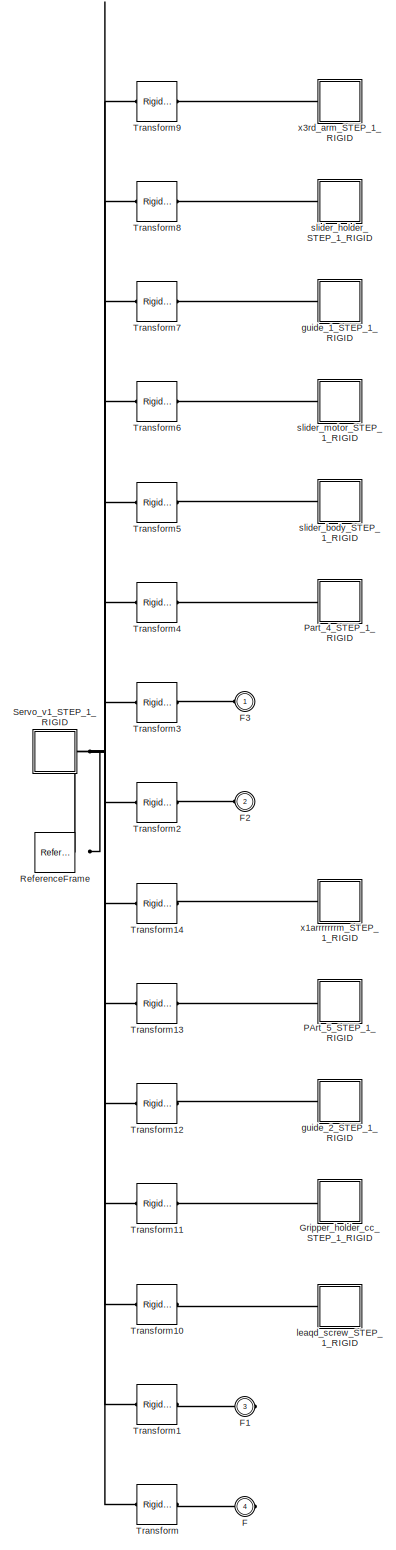
[diagram: second_base_STEP_2_RIGID - part 1/1, most of the canvas]
BLOCK [SubSystem] second_base_STEP_2_RIGID
  Ports = [0, 0, 0, 0, 0, 2, 2]
  RequestExecContextInheritance = off
BLOCK [PMIOPort] second_base_STEP_2_RIGID/F
  Port = 4
  Side = Right
BLOCK [PMIOPort] second_base_STEP_2_RIGID/F1
  Port = 3
  Side = Right
BLOCK [PMIOPort] second_base_STEP_2_RIGID/F2
  Port = 2
  Side = Left
BLOCK [PMIOPort] second_base_STEP_2_RIGID/F3
  Side = Left
BLOCK [SubSystem] second_base_STEP_2_RIGID/Gripper_holder_cc_STEP_1_RIGID
  Ports = [0, 0, 0, 0, 0, 1]
  RequestExecContextInheritance = off
BLOCK [PMIOPort] second_base_STEP_2_RIGID/Gripper_holder_cc_STEP_1_RIGID/F
  Side = Left
BLOCK [Reference] second_base_STEP_2_RIGID/Gripper_holder_cc_STEP_1_RIGID/ReferenceFrame  REF=sm_lib/Frames and
Transforms/Reference
Frame
  Ports = [0, 0, 0, 0, 0, 0, 1]
  SourceBlock = sm_lib/Frames and\nTransforms/Reference\nFrame
  SourceProductBaseCode = MS
  SourceProductName = Simscape Multibody
  SourceType = Reference\nFrame
BLOCK [Reference] second_base_STEP_2_RIGID/Gripper_holder_cc_STEP_1_RIGID/Solid  REF=sm_lib/Body Elements/File Solid
  Ports = [0, 0, 0, 0, 0, 0, 1]
  SourceBlock = sm_lib/Body Elements/File Solid
  SourceProductBaseCode = MS
  SourceProductName = Simscape Multibody
  SourceType = File Solid
BLOCK [SubSystem] second_base_STEP_2_RIGID/PArt_5_STEP_1_RIGID
  Ports = [0, 0, 0, 0, 0, 1]
  RequestExecContextInheritance = off
BLOCK [PMIOPort] second_base_STEP_2_RIGID/PArt_5_STEP_1_RIGID/F
  Side = Left
BLOCK [Reference] second_base_STEP_2_RIGID/PArt_5_STEP_1_RIGID/ReferenceFrame  REF=sm_lib/Frames and
Transforms/Reference
Frame
  Ports = [0, 0, 0, 0, 0, 0, 1]
  SourceBlock = sm_lib/Frames and\nTransforms/Reference\nFrame
  SourceProductBaseCode = MS
  SourceProductName = Simscape Multibody
  SourceType = Reference\nFrame
BLOCK [Reference] second_base_STEP_2_RIGID/PArt_5_STEP_1_RIGID/Solid  REF=sm_lib/Body Elements/File Solid
  Ports = [0, 0, 0, 0, 0, 0, 1]
  SourceBlock = sm_lib/Body Elements/File Solid
  SourceProductBaseCode = MS
  SourceProductName = Simscape Multibody
  SourceType = File Solid
BLOCK [SubSystem] second_base_STEP_2_RIGID/Part_4_STEP_1_RIGID
  Ports = [0, 0, 0, 0, 0, 1]
  RequestExecContextInheritance = off
BLOCK [PMIOPort] second_base_STEP_2_RIGID/Part_4_STEP_1_RIGID/F
  Side = Left
BLOCK [Reference] second_base_STEP_2_RIGID/Part_4_STEP_1_RIGID/ReferenceFrame  REF=sm_lib/Frames and
Transforms/Reference
Frame
  Ports = [0, 0, 0, 0, 0, 0, 1]
  SourceBlock = sm_lib/Frames and\nTransforms/Reference\nFrame
  SourceProductBaseCode = MS
  SourceProductName = Simscape Multibody
  SourceType = Reference\nFrame
BLOCK [Reference] second_base_STEP_2_RIGID/Part_4_STEP_1_RIGID/Solid  REF=sm_lib/Body Elements/File Solid
  Ports = [0, 0, 0, 0, 0, 0, 1]
  SourceBlock = sm_lib/Body Elements/File Solid
  SourceProductBaseCode = MS
  SourceProductName = Simscape Multibody
  SourceType = File Solid
BLOCK [Reference] second_base_STEP_2_RIGID/ReferenceFrame  REF=sm_lib/Frames and
Transforms/Reference
Frame
  Ports = [0, 0, 0, 0, 0, 0, 1]
  SourceBlock = sm_lib/Frames and\nTransforms/Reference\nFrame
  SourceProductBaseCode = MS
  SourceProductName = Simscape Multibody
  SourceType = Reference\nFrame
BLOCK [SubSystem] second_base_STEP_2_RIGID/Servo_v1_STEP_1_RIGID
  Ports = [0, 0, 0, 0, 0, 0, 1]
  RequestExecContextInheritance = off
BLOCK [PMIOPort] second_base_STEP_2_RIGID/Servo_v1_STEP_1_RIGID/F
  Side = Right
BLOCK [Reference] second_base_STEP_2_RIGID/Servo_v1_STEP_1_RIGID/ReferenceFrame  REF=sm_lib/Frames and
Transforms/Reference
Frame
  Ports = [0, 0, 0, 0, 0, 0, 1]
  SourceBlock = sm_lib/Frames and\nTransforms/Reference\nFrame
  SourceProductBaseCode = MS
  SourceProductName = Simscape Multibody
  SourceType = Reference\nFrame
BLOCK [SubSystem] second_base_STEP_2_RIGID/Servo_v1_STEP_1_RIGID/Servo_v1_STEP_STEP_1_RIGID
  Ports = [0, 0, 0, 0, 0, 1]
  RequestExecContextInheritance = off
BLOCK [PMIOPort] second_base_STEP_2_RIGID/Servo_v1_STEP_1_RIGID/Servo_v1_STEP_STEP_1_RIGID/F
  Side = Left
BLOCK [Reference] second_base_STEP_2_RIGID/Servo_v1_STEP_1_RIGID/Servo_v1_STEP_STEP_1_RIGID/ReferenceFrame  REF=sm_lib/Frames and
Transforms/Reference
Frame
  Ports = [0, 0, 0, 0, 0, 0, 1]
  SourceBlock = sm_lib/Frames and\nTransforms/Reference\nFrame
  SourceProductBaseCode = MS
  SourceProductName = Simscape Multibody
  SourceType = Reference\nFrame
BLOCK [SubSystem] second_base_STEP_2_RIGID/Servo_v1_STEP_1_RIGID/Servo_v1_STEP_STEP_1_RIGID/Servo_v1_step_STEP_STEP_1_RIGID
  Ports = [0, 0, 0, 0, 0, 1]
  RequestExecContextInheritance = off
BLOCK [PMIOPort] second_base_STEP_2_RIGID/Servo_v1_STEP_1_RIGID/Servo_v1_STEP_STEP_1_RIGID/Servo_v1_step_STEP_STEP_1_RIGID/F
  Side = Left
BLOCK [Reference] second_base_STEP_2_RIGID/Servo_v1_STEP_1_RIGID/Servo_v1_STEP_STEP_1_RIGID/Servo_v1_step_STEP_STEP_1_RIGID/ReferenceFrame  REF=sm_lib/Frames and
Transforms/Reference
Frame
  Ports = [0, 0, 0, 0, 0, 0, 1]
  SourceBlock = sm_lib/Frames and\nTransforms/Reference\nFrame
  SourceProductBaseCode = MS
  SourceProductName = Simscape Multibody
  SourceType = Reference\nFrame
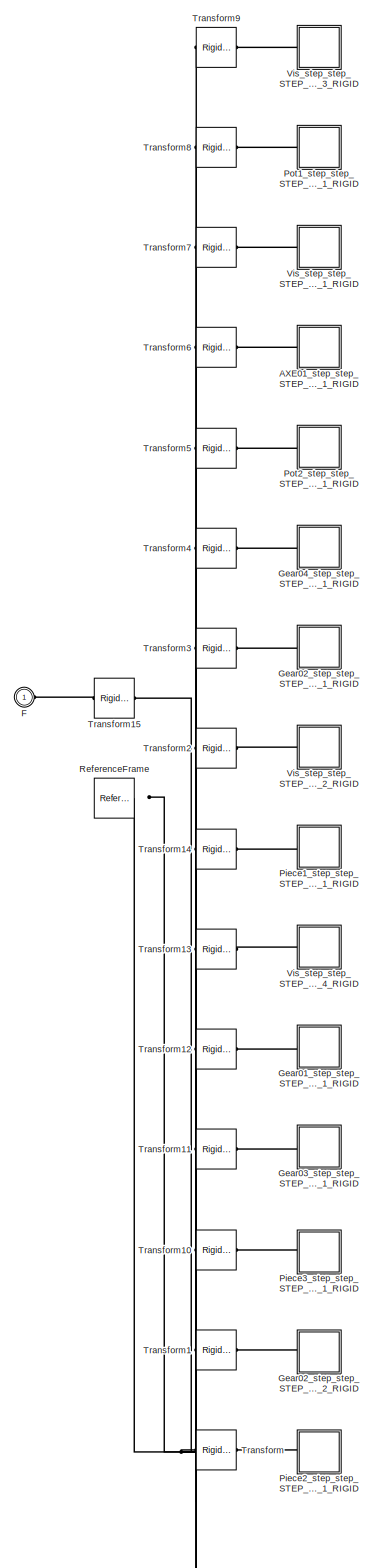
[diagram: second_base_STEP_2_RIGID/Servo_v1_STEP_1_RIGID/Servo_v1_STEP_STEP_1_RIGID/Servo_v1_step_STEP_STEP_1_RIGID/Servo_v1_step_step_STEP_STEP_1_RIGID - part 1/1, most of the canvas]
BLOCK [SubSystem] second_base_STEP_2_RIGID/Servo_v1_STEP_1_RIGID/Servo_v1_STEP_STEP_1_RIGID/Servo_v1_step_STEP_STEP_1_RIGID/Servo_v1_step_step_STEP_STEP_1_RIGID
  Ports = [0, 0, 0, 0, 0, 1]
  RequestExecContextInheritance = off
BLOCK [SubSystem] second_base_STEP_2_RIGID/Servo_v1_STEP_1_RIGID/Servo_v1_STEP_STEP_1_RIGID/Servo_v1_step_STEP_STEP_1_RIGID/Servo_v1_step_step_STEP_STEP_1_RIGID/AXE01_step_step_STEP_STEP_1_RIGID
  Ports = [0, 0, 0, 0, 0, 1]
  RequestExecContextInheritance = off
BLOCK [PMIOPort] second_base_STEP_2_RIGID/Servo_v1_STEP_1_RIGID/Servo_v1_STEP_STEP_1_RIGID/Servo_v1_step_STEP_STEP_1_RIGID/Servo_v1_step_step_STEP_STEP_1_RIGID/AXE01_step_step_STEP_STEP_1_RIGID/F
  Side = Left
BLOCK [Reference] second_base_STEP_2_RIGID/Servo_v1_STEP_1_RIGID/Servo_v1_STEP_STEP_1_RIGID/Servo_v1_step_STEP_STEP_1_RIGID/Servo_v1_step_step_STEP_STEP_1_RIGID/AXE01_step_step_STEP_STEP_1_RIGID/ReferenceFrame  REF=sm_lib/Frames and
Transforms/Reference
Frame
  Ports = [0, 0, 0, 0, 0, 0, 1]
  SourceBlock = sm_lib/Frames and\nTransforms/Reference\nFrame
  SourceProductBaseCode = MS
  SourceProductName = Simscape Multibody
  SourceType = Reference\nFrame
BLOCK [Reference] second_base_STEP_2_RIGID/Servo_v1_STEP_1_RIGID/Servo_v1_STEP_STEP_1_RIGID/Servo_v1_step_STEP_STEP_1_RIGID/Servo_v1_step_step_STEP_STEP_1_RIGID/AXE01_step_step_STEP_STEP_1_RIGID/Solid  REF=sm_lib/Body Elements/File Solid
  Ports = [0, 0, 0, 0, 0, 0, 1]
  SourceBlock = sm_lib/Body Elements/File Solid
  SourceProductBaseCode = MS
  SourceProductName = Simscape Multibody
  SourceType = File Solid
BLOCK [PMIOPort] second_base_STEP_2_RIGID/Servo_v1_STEP_1_RIGID/Servo_v1_STEP_STEP_1_RIGID/Servo_v1_step_STEP_STEP_1_RIGID/Servo_v1_step_step_STEP_STEP_1_RIGID/F
  Side = Left
BLOCK [SubSystem] second_base_STEP_2_RIGID/Servo_v1_STEP_1_RIGID/Servo_v1_STEP_STEP_1_RIGID/Servo_v1_step_STEP_STEP_1_RIGID/Servo_v1_step_step_STEP_STEP_1_RIGID/Gear01_step_step_STEP_STEP_1_RIGID
  Ports = [0, 0, 0, 0, 0, 1]
  RequestExecContextInheritance = off
BLOCK [PMIOPort] second_base_STEP_2_RIGID/Servo_v1_STEP_1_RIGID/Servo_v1_STEP_STEP_1_RIGID/Servo_v1_step_STEP_STEP_1_RIGID/Servo_v1_step_step_STEP_STEP_1_RIGID/Gear01_step_step_STEP_STEP_1_RIGID/F
  Side = Left
BLOCK [Reference] second_base_STEP_2_RIGID/Servo_v1_STEP_1_RIGID/Servo_v1_STEP_STEP_1_RIGID/Servo_v1_step_STEP_STEP_1_RIGID/Servo_v1_step_step_STEP_STEP_1_RIGID/Gear01_step_step_STEP_STEP_1_RIGID/ReferenceFrame  REF=sm_lib/Frames and
Transforms/Reference
Frame
  Ports = [0, 0, 0, 0, 0, 0, 1]
  SourceBlock = sm_lib/Frames and\nTransforms/Reference\nFrame
  SourceProductBaseCode = MS
  SourceProductName = Simscape Multibody
  SourceType = Reference\nFrame
BLOCK [Reference] second_base_STEP_2_RIGID/Servo_v1_STEP_1_RIGID/Servo_v1_STEP_STEP_1_RIGID/Servo_v1_step_STEP_STEP_1_RIGID/Servo_v1_step_step_STEP_STEP_1_RIGID/Gear01_step_step_STEP_STEP_1_RIGID/Solid  REF=sm_lib/Body Elements/File Solid
  Ports = [0, 0, 0, 0, 0, 0, 1]
  SourceBlock = sm_lib/Body Elements/File Solid
  SourceProductBaseCode = MS
  SourceProductName = Simscape Multibody
  SourceType = File Solid
BLOCK [SubSystem] second_base_STEP_2_RIGID/Servo_v1_STEP_1_RIGID/Servo_v1_STEP_STEP_1_RIGID/Servo_v1_step_STEP_STEP_1_RIGID/Servo_v1_step_step_STEP_STEP_1_RIGID/Gear02_step_step_STEP_STEP_1_RIGID
  Ports = [0, 0, 0, 0, 0, 1]
  RequestExecContextInheritance = off
BLOCK [PMIOPort] second_base_STEP_2_RIGID/Servo_v1_STEP_1_RIGID/Servo_v1_STEP_STEP_1_RIGID/Servo_v1_step_STEP_STEP_1_RIGID/Servo_v1_step_step_STEP_STEP_1_RIGID/Gear02_step_step_STEP_STEP_1_RIGID/F
  Side = Left
BLOCK [Reference] second_base_STEP_2_RIGID/Servo_v1_STEP_1_RIGID/Servo_v1_STEP_STEP_1_RIGID/Servo_v1_step_STEP_STEP_1_RIGID/Servo_v1_step_step_STEP_STEP_1_RIGID/Gear02_step_step_STEP_STEP_1_RIGID/ReferenceFrame  REF=sm_lib/Frames and
Transforms/Reference
Frame
  Ports = [0, 0, 0, 0, 0, 0, 1]
  SourceBlock = sm_lib/Frames and\nTransforms/Reference\nFrame
  SourceProductBaseCode = MS
  SourceProductName = Simscape Multibody
  SourceType = Reference\nFrame
BLOCK [Reference] second_base_STEP_2_RIGID/Servo_v1_STEP_1_RIGID/Servo_v1_STEP_STEP_1_RIGID/Servo_v1_step_STEP_STEP_1_RIGID/Servo_v1_step_step_STEP_STEP_1_RIGID/Gear02_step_step_STEP_STEP_1_RIGID/Solid  REF=sm_lib/Body Elements/File Solid
  Ports = [0, 0, 0, 0, 0, 0, 1]
  SourceBlock = sm_lib/Body Elements/File Solid
  SourceProductBaseCode = MS
  SourceProductName = Simscape Multibody
  SourceType = File Solid
BLOCK [SubSystem] second_base_STEP_2_RIGID/Servo_v1_STEP_1_RIGID/Servo_v1_STEP_STEP_1_RIGID/Servo_v1_step_STEP_STEP_1_RIGID/Servo_v1_step_step_STEP_STEP_1_RIGID/Gear02_step_step_STEP_STEP_2_RIGID
  Ports = [0, 0, 0, 0, 0, 1]
  RequestExecContextInheritance = off
BLOCK [PMIOPort] second_base_STEP_2_RIGID/Servo_v1_STEP_1_RIGID/Servo_v1_STEP_STEP_1_RIGID/Servo_v1_step_STEP_STEP_1_RIGID/Servo_v1_step_step_STEP_STEP_1_RIGID/Gear02_step_step_STEP_STEP_2_RIGID/F
  Side = Left
BLOCK [Reference] second_base_STEP_2_RIGID/Servo_v1_STEP_1_RIGID/Servo_v1_STEP_STEP_1_RIGID/Servo_v1_step_STEP_STEP_1_RIGID/Servo_v1_step_step_STEP_STEP_1_RIGID/Gear02_step_step_STEP_STEP_2_RIGID/ReferenceFrame  REF=sm_lib/Frames and
Transforms/Reference
Frame
  Ports = [0, 0, 0, 0, 0, 0, 1]
  SourceBlock = sm_lib/Frames and\nTransforms/Reference\nFrame
  SourceProductBaseCode = MS
  SourceProductName = Simscape Multibody
  SourceType = Reference\nFrame
BLOCK [Reference] second_base_STEP_2_RIGID/Servo_v1_STEP_1_RIGID/Servo_v1_STEP_STEP_1_RIGID/Servo_v1_step_STEP_STEP_1_RIGID/Servo_v1_step_step_STEP_STEP_1_RIGID/Gear02_step_step_STEP_STEP_2_RIGID/Solid  REF=sm_lib/Body Elements/File Solid
  Ports = [0, 0, 0, 0, 0, 0, 1]
  SourceBlock = sm_lib/Body Elements/File Solid
  SourceProductBaseCode = MS
  SourceProductName = Simscape Multibody
  SourceType = File Solid
BLOCK [SubSystem] second_base_STEP_2_RIGID/Servo_v1_STEP_1_RIGID/Servo_v1_STEP_STEP_1_RIGID/Servo_v1_step_STEP_STEP_1_RIGID/Servo_v1_step_step_STEP_STEP_1_RIGID/Gear03_step_step_STEP_STEP_1_RIGID
  Ports = [0, 0, 0, 0, 0, 1]
  RequestExecContextInheritance = off
BLOCK [PMIOPort] second_base_STEP_2_RIGID/Servo_v1_STEP_1_RIGID/Servo_v1_STEP_STEP_1_RIGID/Servo_v1_step_STEP_STEP_1_RIGID/Servo_v1_step_step_STEP_STEP_1_RIGID/Gear03_step_step_STEP_STEP_1_RIGID/F
  Side = Left
BLOCK [Reference] second_base_STEP_2_RIGID/Servo_v1_STEP_1_RIGID/Servo_v1_STEP_STEP_1_RIGID/Servo_v1_step_STEP_STEP_1_RIGID/Servo_v1_step_step_STEP_STEP_1_RIGID/Gear03_step_step_STEP_STEP_1_RIGID/ReferenceFrame  REF=sm_lib/Frames and
Transforms/Reference
Frame
  Ports = [0, 0, 0, 0, 0, 0, 1]
  SourceBlock = sm_lib/Frames and\nTransforms/Reference\nFrame
  SourceProductBaseCode = MS
  SourceProductName = Simscape Multibody
  SourceType = Reference\nFrame
BLOCK [Reference] second_base_STEP_2_RIGID/Servo_v1_STEP_1_RIGID/Servo_v1_STEP_STEP_1_RIGID/Servo_v1_step_STEP_STEP_1_RIGID/Servo_v1_step_step_STEP_STEP_1_RIGID/Gear03_step_step_STEP_STEP_1_RIGID/Solid  REF=sm_lib/Body Elements/File Solid
  Ports = [0, 0, 0, 0, 0, 0, 1]
  SourceBlock = sm_lib/Body Elements/File Solid
  SourceProductBaseCode = MS
  SourceProductName = Simscape Multibody
  SourceType = File Solid
BLOCK [SubSystem] second_base_STEP_2_RIGID/Servo_v1_STEP_1_RIGID/Servo_v1_STEP_STEP_1_RIGID/Servo_v1_step_STEP_STEP_1_RIGID/Servo_v1_step_step_STEP_STEP_1_RIGID/Gear04_step_step_STEP_STEP_1_RIGID
  Ports = [0, 0, 0, 0, 0, 1]
  RequestExecContextInheritance = off
BLOCK [PMIOPort] second_base_STEP_2_RIGID/Servo_v1_STEP_1_RIGID/Servo_v1_STEP_STEP_1_RIGID/Servo_v1_step_STEP_STEP_1_RIGID/Servo_v1_step_step_STEP_STEP_1_RIGID/Gear04_step_step_STEP_STEP_1_RIGID/F
  Side = Left
BLOCK [Reference] second_base_STEP_2_RIGID/Servo_v1_STEP_1_RIGID/Servo_v1_STEP_STEP_1_RIGID/Servo_v1_step_STEP_STEP_1_RIGID/Servo_v1_step_step_STEP_STEP_1_RIGID/Gear04_step_step_STEP_STEP_1_RIGID/ReferenceFrame  REF=sm_lib/Frames and
Transforms/Reference
Frame
  Ports = [0, 0, 0, 0, 0, 0, 1]
  SourceBlock = sm_lib/Frames and\nTransforms/Reference\nFrame
  SourceProductBaseCode = MS
  SourceProductName = Simscape Multibody
  SourceType = Reference\nFrame
BLOCK [Reference] second_base_STEP_2_RIGID/Servo_v1_STEP_1_RIGID/Servo_v1_STEP_STEP_1_RIGID/Servo_v1_step_STEP_STEP_1_RIGID/Servo_v1_step_step_STEP_STEP_1_RIGID/Gear04_step_step_STEP_STEP_1_RIGID/Solid  REF=sm_lib/Body Elements/File Solid
  Ports = [0, 0, 0, 0, 0, 0, 1]
  SourceBlock = sm_lib/Body Elements/File Solid
  SourceProductBaseCode = MS
  SourceProductName = Simscape Multibody
  SourceType = File Solid
BLOCK [SubSystem] second_base_STEP_2_RIGID/Servo_v1_STEP_1_RIGID/Servo_v1_STEP_STEP_1_RIGID/Servo_v1_step_STEP_STEP_1_RIGID/Servo_v1_step_step_STEP_STEP_1_RIGID/Piece1_step_step_STEP_STEP_1_RIGID
  Ports = [0, 0, 0, 0, 0, 1]
  RequestExecContextInheritance = off
BLOCK [PMIOPort] second_base_STEP_2_RIGID/Servo_v1_STEP_1_RIGID/Servo_v1_STEP_STEP_1_RIGID/Servo_v1_step_STEP_STEP_1_RIGID/Servo_v1_step_step_STEP_STEP_1_RIGID/Piece1_step_step_STEP_STEP_1_RIGID/F
  Side = Left
BLOCK [Reference] second_base_STEP_2_RIGID/Servo_v1_STEP_1_RIGID/Servo_v1_STEP_STEP_1_RIGID/Servo_v1_step_STEP_STEP_1_RIGID/Servo_v1_step_step_STEP_STEP_1_RIGID/Piece1_step_step_STEP_STEP_1_RIGID/ReferenceFrame  REF=sm_lib/Frames and
Transforms/Reference
Frame
  Ports = [0, 0, 0, 0, 0, 0, 1]
  SourceBlock = sm_lib/Frames and\nTransforms/Reference\nFrame
  SourceProductBaseCode = MS
  SourceProductName = Simscape Multibody
  SourceType = Reference\nFrame
BLOCK [Reference] second_base_STEP_2_RIGID/Servo_v1_STEP_1_RIGID/Servo_v1_STEP_STEP_1_RIGID/Servo_v1_step_STEP_STEP_1_RIGID/Servo_v1_step_step_STEP_STEP_1_RIGID/Piece1_step_step_STEP_STEP_1_RIGID/Solid  REF=sm_lib/Body Elements/File Solid
  Ports = [0, 0, 0, 0, 0, 0, 1]
  SourceBlock = sm_lib/Body Elements/File Solid
  SourceProductBaseCode = MS
  SourceProductName = Simscape Multibody
  SourceType = File Solid
BLOCK [SubSystem] second_base_STEP_2_RIGID/Servo_v1_STEP_1_RIGID/Servo_v1_STEP_STEP_1_RIGID/Servo_v1_step_STEP_STEP_1_RIGID/Servo_v1_step_step_STEP_STEP_1_RIGID/Piece2_step_step_STEP_STEP_1_RIGID
  Ports = [0, 0, 0, 0, 0, 1]
  RequestExecContextInheritance = off
BLOCK [PMIOPort] second_base_STEP_2_RIGID/Servo_v1_STEP_1_RIGID/Servo_v1_STEP_STEP_1_RIGID/Servo_v1_step_STEP_STEP_1_RIGID/Servo_v1_step_step_STEP_STEP_1_RIGID/Piece2_step_step_STEP_STEP_1_RIGID/F
  Side = Left
BLOCK [Reference] second_base_STEP_2_RIGID/Servo_v1_STEP_1_RIGID/Servo_v1_STEP_STEP_1_RIGID/Servo_v1_step_STEP_STEP_1_RIGID/Servo_v1_step_step_STEP_STEP_1_RIGID/Piece2_step_step_STEP_STEP_1_RIGID/ReferenceFrame  REF=sm_lib/Frames and
Transforms/Reference
Frame
  Ports = [0, 0, 0, 0, 0, 0, 1]
  SourceBlock = sm_lib/Frames and\nTransforms/Reference\nFrame
  SourceProductBaseCode = MS
  SourceProductName = Simscape Multibody
  SourceType = Reference\nFrame
BLOCK [Reference] second_base_STEP_2_RIGID/Servo_v1_STEP_1_RIGID/Servo_v1_STEP_STEP_1_RIGID/Servo_v1_step_STEP_STEP_1_RIGID/Servo_v1_step_step_STEP_STEP_1_RIGID/Piece2_step_step_STEP_STEP_1_RIGID/Solid  REF=sm_lib/Body Elements/File Solid
  Ports = [0, 0, 0, 0, 0, 0, 1]
  SourceBlock = sm_lib/Body Elements/File Solid
  SourceProductBaseCode = MS
  SourceProductName = Simscape Multibody
  SourceType = File Solid
BLOCK [SubSystem] second_base_STEP_2_RIGID/Servo_v1_STEP_1_RIGID/Servo_v1_STEP_STEP_1_RIGID/Servo_v1_step_STEP_STEP_1_RIGID/Servo_v1_step_step_STEP_STEP_1_RIGID/Piece3_step_step_STEP_STEP_1_RIGID
  Ports = [0, 0, 0, 0, 0, 1]
  RequestExecContextInheritance = off
BLOCK [PMIOPort] second_base_STEP_2_RIGID/Servo_v1_STEP_1_RIGID/Servo_v1_STEP_STEP_1_RIGID/Servo_v1_step_STEP_STEP_1_RIGID/Servo_v1_step_step_STEP_STEP_1_RIGID/Piece3_step_step_STEP_STEP_1_RIGID/F
  Side = Left
BLOCK [Reference] second_base_STEP_2_RIGID/Servo_v1_STEP_1_RIGID/Servo_v1_STEP_STEP_1_RIGID/Servo_v1_step_STEP_STEP_1_RIGID/Servo_v1_step_step_STEP_STEP_1_RIGID/Piece3_step_step_STEP_STEP_1_RIGID/ReferenceFrame  REF=sm_lib/Frames and
Transforms/Reference
Frame
  Ports = [0, 0, 0, 0, 0, 0, 1]
  SourceBlock = sm_lib/Frames and\nTransforms/Reference\nFrame
  SourceProductBaseCode = MS
  SourceProductName = Simscape Multibody
  SourceType = Reference\nFrame
BLOCK [Reference] second_base_STEP_2_RIGID/Servo_v1_STEP_1_RIGID/Servo_v1_STEP_STEP_1_RIGID/Servo_v1_step_STEP_STEP_1_RIGID/Servo_v1_step_step_STEP_STEP_1_RIGID/Piece3_step_step_STEP_STEP_1_RIGID/Solid  REF=sm_lib/Body Elements/File Solid
  Ports = [0, 0, 0, 0, 0, 0, 1]
  SourceBlock = sm_lib/Body Elements/File Solid
  SourceProductBaseCode = MS
  SourceProductName = Simscape Multibody
  SourceType = File Solid
BLOCK [SubSystem] second_base_STEP_2_RIGID/Servo_v1_STEP_1_RIGID/Servo_v1_STEP_STEP_1_RIGID/Servo_v1_step_STEP_STEP_1_RIGID/Servo_v1_step_step_STEP_STEP_1_RIGID/Pot1_step_step_STEP_STEP_1_RIGID
  Ports = [0, 0, 0, 0, 0, 1]
  RequestExecContextInheritance = off
BLOCK [PMIOPort] second_base_STEP_2_RIGID/Servo_v1_STEP_1_RIGID/Servo_v1_STEP_STEP_1_RIGID/Servo_v1_step_STEP_STEP_1_RIGID/Servo_v1_step_step_STEP_STEP_1_RIGID/Pot1_step_step_STEP_STEP_1_RIGID/F
  Side = Left
BLOCK [Reference] second_base_STEP_2_RIGID/Servo_v1_STEP_1_RIGID/Servo_v1_STEP_STEP_1_RIGID/Servo_v1_step_STEP_STEP_1_RIGID/Servo_v1_step_step_STEP_STEP_1_RIGID/Pot1_step_step_STEP_STEP_1_RIGID/ReferenceFrame  REF=sm_lib/Frames and
Transforms/Reference
Frame
  Ports = [0, 0, 0, 0, 0, 0, 1]
  SourceBlock = sm_lib/Frames and\nTransforms/Reference\nFrame
  SourceProductBaseCode = MS
  SourceProductName = Simscape Multibody
  SourceType = Reference\nFrame
BLOCK [Reference] second_base_STEP_2_RIGID/Servo_v1_STEP_1_RIGID/Servo_v1_STEP_STEP_1_RIGID/Servo_v1_step_STEP_STEP_1_RIGID/Servo_v1_step_step_STEP_STEP_1_RIGID/Pot1_step_step_STEP_STEP_1_RIGID/Solid  REF=sm_lib/Body Elements/File Solid
  Ports = [0, 0, 0, 0, 0, 0, 1]
  SourceBlock = sm_lib/Body Elements/File Solid
  SourceProductBaseCode = MS
  SourceProductName = Simscape Multibody
  SourceType = File Solid
BLOCK [SubSystem] second_base_STEP_2_RIGID/Servo_v1_STEP_1_RIGID/Servo_v1_STEP_STEP_1_RIGID/Servo_v1_step_STEP_STEP_1_RIGID/Servo_v1_step_step_STEP_STEP_1_RIGID/Pot2_step_step_STEP_STEP_1_RIGID
  Ports = [0, 0, 0, 0, 0, 1]
  RequestExecContextInheritance = off
BLOCK [PMIOPort] second_base_STEP_2_RIGID/Servo_v1_STEP_1_RIGID/Servo_v1_STEP_STEP_1_RIGID/Servo_v1_step_STEP_STEP_1_RIGID/Servo_v1_step_step_STEP_STEP_1_RIGID/Pot2_step_step_STEP_STEP_1_RIGID/F
  Side = Left
BLOCK [Reference] second_base_STEP_2_RIGID/Servo_v1_STEP_1_RIGID/Servo_v1_STEP_STEP_1_RIGID/Servo_v1_step_STEP_STEP_1_RIGID/Servo_v1_step_step_STEP_STEP_1_RIGID/Pot2_step_step_STEP_STEP_1_RIGID/ReferenceFrame  REF=sm_lib/Frames and
Transforms/Reference
Frame
  Ports = [0, 0, 0, 0, 0, 0, 1]
  SourceBlock = sm_lib/Frames and\nTransforms/Reference\nFrame
  SourceProductBaseCode = MS
  SourceProductName = Simscape Multibody
  SourceType = Reference\nFrame
BLOCK [Reference] second_base_STEP_2_RIGID/Servo_v1_STEP_1_RIGID/Servo_v1_STEP_STEP_1_RIGID/Servo_v1_step_STEP_STEP_1_RIGID/Servo_v1_step_step_STEP_STEP_1_RIGID/Pot2_step_step_STEP_STEP_1_RIGID/Solid  REF=sm_lib/Body Elements/File Solid
  Ports = [0, 0, 0, 0, 0, 0, 1]
  SourceBlock = sm_lib/Body Elements/File Solid
  SourceProductBaseCode = MS
  SourceProductName = Simscape Multibody
  SourceType = File Solid
BLOCK [Reference] second_base_STEP_2_RIGID/Servo_v1_STEP_1_RIGID/Servo_v1_STEP_STEP_1_RIGID/Servo_v1_step_STEP_STEP_1_RIGID/Servo_v1_step_step_STEP_STEP_1_RIGID/ReferenceFrame  REF=sm_lib/Frames and
Transforms/Reference
Frame
  Ports = [0, 0, 0, 0, 0, 0, 1]
  SourceBlock = sm_lib/Frames and\nTransforms/Reference\nFrame
  SourceProductBaseCode = MS
  SourceProductName = Simscape Multibody
  SourceType = Reference\nFrame
BLOCK [Reference] second_base_STEP_2_RIGID/Servo_v1_STEP_1_RIGID/Servo_v1_STEP_STEP_1_RIGID/Servo_v1_step_STEP_STEP_1_RIGID/Servo_v1_step_step_STEP_STEP_1_RIGID/Transform  REF=sm_lib/Frames and
Transforms/Rigid
Transform
  Ports = [0, 0, 0, 0, 0, 1, 1]
  SourceBlock = sm_lib/Frames and\nTransforms/Rigid\nTransform
  SourceProductBaseCode = MS
  SourceProductName = Simscape Multibody
  SourceType = Rigid\nTransform
BLOCK [Reference] second_base_STEP_2_RIGID/Servo_v1_STEP_1_RIGID/Servo_v1_STEP_STEP_1_RIGID/Servo_v1_step_STEP_STEP_1_RIGID/Servo_v1_step_step_STEP_STEP_1_RIGID/Transform1  REF=sm_lib/Frames and
Transforms/Rigid
Transform
  Ports = [0, 0, 0, 0, 0, 1, 1]
  SourceBlock = sm_lib/Frames and\nTransforms/Rigid\nTransform
  SourceProductBaseCode = MS
  SourceProductName = Simscape Multibody
  SourceType = Rigid\nTransform
BLOCK [Reference] second_base_STEP_2_RIGID/Servo_v1_STEP_1_RIGID/Servo_v1_STEP_STEP_1_RIGID/Servo_v1_step_STEP_STEP_1_RIGID/Servo_v1_step_step_STEP_STEP_1_RIGID/Transform10  REF=sm_lib/Frames and
Transforms/Rigid
Transform
  Ports = [0, 0, 0, 0, 0, 1, 1]
  SourceBlock = sm_lib/Frames and\nTransforms/Rigid\nTransform
  SourceProductBaseCode = MS
  SourceProductName = Simscape Multibody
  SourceType = Rigid\nTransform
BLOCK [Reference] second_base_STEP_2_RIGID/Servo_v1_STEP_1_RIGID/Servo_v1_STEP_STEP_1_RIGID/Servo_v1_step_STEP_STEP_1_RIGID/Servo_v1_step_step_STEP_STEP_1_RIGID/Transform11  REF=sm_lib/Frames and
Transforms/Rigid
Transform
  Ports = [0, 0, 0, 0, 0, 1, 1]
  SourceBlock = sm_lib/Frames and\nTransforms/Rigid\nTransform
  SourceProductBaseCode = MS
  SourceProductName = Simscape Multibody
  SourceType = Rigid\nTransform
BLOCK [Reference] second_base_STEP_2_RIGID/Servo_v1_STEP_1_RIGID/Servo_v1_STEP_STEP_1_RIGID/Servo_v1_step_STEP_STEP_1_RIGID/Servo_v1_step_step_STEP_STEP_1_RIGID/Transform12  REF=sm_lib/Frames and
Transforms/Rigid
Transform
  Ports = [0, 0, 0, 0, 0, 1, 1]
  SourceBlock = sm_lib/Frames and\nTransforms/Rigid\nTransform
  SourceProductBaseCode = MS
  SourceProductName = Simscape Multibody
  SourceType = Rigid\nTransform
BLOCK [Reference] second_base_STEP_2_RIGID/Servo_v1_STEP_1_RIGID/Servo_v1_STEP_STEP_1_RIGID/Servo_v1_step_STEP_STEP_1_RIGID/Servo_v1_step_step_STEP_STEP_1_RIGID/Transform13  REF=sm_lib/Frames and
Transforms/Rigid
Transform
  Ports = [0, 0, 0, 0, 0, 1, 1]
  SourceBlock = sm_lib/Frames and\nTransforms/Rigid\nTransform
  SourceProductBaseCode = MS
  SourceProductName = Simscape Multibody
  SourceType = Rigid\nTransform
BLOCK [Reference] second_base_STEP_2_RIGID/Servo_v1_STEP_1_RIGID/Servo_v1_STEP_STEP_1_RIGID/Servo_v1_step_STEP_STEP_1_RIGID/Servo_v1_step_step_STEP_STEP_1_RIGID/Transform14  REF=sm_lib/Frames and
Transforms/Rigid
Transform
  Ports = [0, 0, 0, 0, 0, 1, 1]
  SourceBlock = sm_lib/Frames and\nTransforms/Rigid\nTransform
  SourceProductBaseCode = MS
  SourceProductName = Simscape Multibody
  SourceType = Rigid\nTransform
BLOCK [Reference] second_base_STEP_2_RIGID/Servo_v1_STEP_1_RIGID/Servo_v1_STEP_STEP_1_RIGID/Servo_v1_step_STEP_STEP_1_RIGID/Servo_v1_step_step_STEP_STEP_1_RIGID/Transform15  REF=sm_lib/Frames and
Transforms/Rigid
Transform
  Ports = [0, 0, 0, 0, 0, 1, 1]
  SourceBlock = sm_lib/Frames and\nTransforms/Rigid\nTransform
  SourceProductBaseCode = MS
  SourceProductName = Simscape Multibody
  SourceType = Rigid\nTransform
BLOCK [Reference] second_base_STEP_2_RIGID/Servo_v1_STEP_1_RIGID/Servo_v1_STEP_STEP_1_RIGID/Servo_v1_step_STEP_STEP_1_RIGID/Servo_v1_step_step_STEP_STEP_1_RIGID/Transform2  REF=sm_lib/Frames and
Transforms/Rigid
Transform
  Ports = [0, 0, 0, 0, 0, 1, 1]
  SourceBlock = sm_lib/Frames and\nTransforms/Rigid\nTransform
  SourceProductBaseCode = MS
  SourceProductName = Simscape Multibody
  SourceType = Rigid\nTransform
BLOCK [Reference] second_base_STEP_2_RIGID/Servo_v1_STEP_1_RIGID/Servo_v1_STEP_STEP_1_RIGID/Servo_v1_step_STEP_STEP_1_RIGID/Servo_v1_step_step_STEP_STEP_1_RIGID/Transform3  REF=sm_lib/Frames and
Transforms/Rigid
Transform
  Ports = [0, 0, 0, 0, 0, 1, 1]
  SourceBlock = sm_lib/Frames and\nTransforms/Rigid\nTransform
  SourceProductBaseCode = MS
  SourceProductName = Simscape Multibody
  SourceType = Rigid\nTransform
BLOCK [Reference] second_base_STEP_2_RIGID/Servo_v1_STEP_1_RIGID/Servo_v1_STEP_STEP_1_RIGID/Servo_v1_step_STEP_STEP_1_RIGID/Servo_v1_step_step_STEP_STEP_1_RIGID/Transform4  REF=sm_lib/Frames and
Transforms/Rigid
Transform
  Ports = [0, 0, 0, 0, 0, 1, 1]
  SourceBlock = sm_lib/Frames and\nTransforms/Rigid\nTransform
  SourceProductBaseCode = MS
  SourceProductName = Simscape Multibody
  SourceType = Rigid\nTransform
BLOCK [Reference] second_base_STEP_2_RIGID/Servo_v1_STEP_1_RIGID/Servo_v1_STEP_STEP_1_RIGID/Servo_v1_step_STEP_STEP_1_RIGID/Servo_v1_step_step_STEP_STEP_1_RIGID/Transform5  REF=sm_lib/Frames and
Transforms/Rigid
Transform
  Ports = [0, 0, 0, 0, 0, 1, 1]
  SourceBlock = sm_lib/Frames and\nTransforms/Rigid\nTransform
  SourceProductBaseCode = MS
  SourceProductName = Simscape Multibody
  SourceType = Rigid\nTransform
BLOCK [Reference] second_base_STEP_2_RIGID/Servo_v1_STEP_1_RIGID/Servo_v1_STEP_STEP_1_RIGID/Servo_v1_step_STEP_STEP_1_RIGID/Servo_v1_step_step_STEP_STEP_1_RIGID/Transform6  REF=sm_lib/Frames and
Transforms/Rigid
Transform
  Ports = [0, 0, 0, 0, 0, 1, 1]
  SourceBlock = sm_lib/Frames and\nTransforms/Rigid\nTransform
  SourceProductBaseCode = MS
  SourceProductName = Simscape Multibody
  SourceType = Rigid\nTransform
BLOCK [Reference] second_base_STEP_2_RIGID/Servo_v1_STEP_1_RIGID/Servo_v1_STEP_STEP_1_RIGID/Servo_v1_step_STEP_STEP_1_RIGID/Servo_v1_step_step_STEP_STEP_1_RIGID/Transform7  REF=sm_lib/Frames and
Transforms/Rigid
Transform
  Ports = [0, 0, 0, 0, 0, 1, 1]
  SourceBlock = sm_lib/Frames and\nTransforms/Rigid\nTransform
  SourceProductBaseCode = MS
  SourceProductName = Simscape Multibody
  SourceType = Rigid\nTransform
BLOCK [Reference] second_base_STEP_2_RIGID/Servo_v1_STEP_1_RIGID/Servo_v1_STEP_STEP_1_RIGID/Servo_v1_step_STEP_STEP_1_RIGID/Servo_v1_step_step_STEP_STEP_1_RIGID/Transform8  REF=sm_lib/Frames and
Transforms/Rigid
Transform
  Ports = [0, 0, 0, 0, 0, 1, 1]
  SourceBlock = sm_lib/Frames and\nTransforms/Rigid\nTransform
  SourceProductBaseCode = MS
  SourceProductName = Simscape Multibody
  SourceType = Rigid\nTransform
BLOCK [Reference] second_base_STEP_2_RIGID/Servo_v1_STEP_1_RIGID/Servo_v1_STEP_STEP_1_RIGID/Servo_v1_step_STEP_STEP_1_RIGID/Servo_v1_step_step_STEP_STEP_1_RIGID/Transform9  REF=sm_lib/Frames and
Transforms/Rigid
Transform
  Ports = [0, 0, 0, 0, 0, 1, 1]
  SourceBlock = sm_lib/Frames and\nTransforms/Rigid\nTransform
  SourceProductBaseCode = MS
  SourceProductName = Simscape Multibody
  SourceType = Rigid\nTransform
BLOCK [SubSystem] second_base_STEP_2_RIGID/Servo_v1_STEP_1_RIGID/Servo_v1_STEP_STEP_1_RIGID/Servo_v1_step_STEP_STEP_1_RIGID/Servo_v1_step_step_STEP_STEP_1_RIGID/Vis_step_step_STEP_STEP_1_RIGID
  Ports = [0, 0, 0, 0, 0, 1]
  RequestExecContextInheritance = off
BLOCK [PMIOPort] second_base_STEP_2_RIGID/Servo_v1_STEP_1_RIGID/Servo_v1_STEP_STEP_1_RIGID/Servo_v1_step_STEP_STEP_1_RIGID/Servo_v1_step_step_STEP_STEP_1_RIGID/Vis_step_step_STEP_STEP_1_RIGID/F
  Side = Left
BLOCK [Reference] second_base_STEP_2_RIGID/Servo_v1_STEP_1_RIGID/Servo_v1_STEP_STEP_1_RIGID/Servo_v1_step_STEP_STEP_1_RIGID/Servo_v1_step_step_STEP_STEP_1_RIGID/Vis_step_step_STEP_STEP_1_RIGID/ReferenceFrame  REF=sm_lib/Frames and
Transforms/Reference
Frame
  Ports = [0, 0, 0, 0, 0, 0, 1]
  SourceBlock = sm_lib/Frames and\nTransforms/Reference\nFrame
  SourceProductBaseCode = MS
  SourceProductName = Simscape Multibody
  SourceType = Reference\nFrame
BLOCK [Reference] second_base_STEP_2_RIGID/Servo_v1_STEP_1_RIGID/Servo_v1_STEP_STEP_1_RIGID/Servo_v1_step_STEP_STEP_1_RIGID/Servo_v1_step_step_STEP_STEP_1_RIGID/Vis_step_step_STEP_STEP_1_RIGID/Solid  REF=sm_lib/Body Elements/File Solid
  Ports = [0, 0, 0, 0, 0, 0, 1]
  SourceBlock = sm_lib/Body Elements/File Solid
  SourceProductBaseCode = MS
  SourceProductName = Simscape Multibody
  SourceType = File Solid
BLOCK [SubSystem] second_base_STEP_2_RIGID/Servo_v1_STEP_1_RIGID/Servo_v1_STEP_STEP_1_RIGID/Servo_v1_step_STEP_STEP_1_RIGID/Servo_v1_step_step_STEP_STEP_1_RIGID/Vis_step_step_STEP_STEP_2_RIGID
  Ports = [0, 0, 0, 0, 0, 1]
  RequestExecContextInheritance = off
BLOCK [PMIOPort] second_base_STEP_2_RIGID/Servo_v1_STEP_1_RIGID/Servo_v1_STEP_STEP_1_RIGID/Servo_v1_step_STEP_STEP_1_RIGID/Servo_v1_step_step_STEP_STEP_1_RIGID/Vis_step_step_STEP_STEP_2_RIGID/F
  Side = Left
BLOCK [Reference] second_base_STEP_2_RIGID/Servo_v1_STEP_1_RIGID/Servo_v1_STEP_STEP_1_RIGID/Servo_v1_step_STEP_STEP_1_RIGID/Servo_v1_step_step_STEP_STEP_1_RIGID/Vis_step_step_STEP_STEP_2_RIGID/ReferenceFrame  REF=sm_lib/Frames and
Transforms/Reference
Frame
  Ports = [0, 0, 0, 0, 0, 0, 1]
  SourceBlock = sm_lib/Frames and\nTransforms/Reference\nFrame
  SourceProductBaseCode = MS
  SourceProductName = Simscape Multibody
  SourceType = Reference\nFrame
BLOCK [Reference] second_base_STEP_2_RIGID/Servo_v1_STEP_1_RIGID/Servo_v1_STEP_STEP_1_RIGID/Servo_v1_step_STEP_STEP_1_RIGID/Servo_v1_step_step_STEP_STEP_1_RIGID/Vis_step_step_STEP_STEP_2_RIGID/Solid  REF=sm_lib/Body Elements/File Solid
  Ports = [0, 0, 0, 0, 0, 0, 1]
  SourceBlock = sm_lib/Body Elements/File Solid
  SourceProductBaseCode = MS
  SourceProductName = Simscape Multibody
  SourceType = File Solid
BLOCK [SubSystem] second_base_STEP_2_RIGID/Servo_v1_STEP_1_RIGID/Servo_v1_STEP_STEP_1_RIGID/Servo_v1_step_STEP_STEP_1_RIGID/Servo_v1_step_step_STEP_STEP_1_RIGID/Vis_step_step_STEP_STEP_3_RIGID
  Ports = [0, 0, 0, 0, 0, 1]
  RequestExecContextInheritance = off
BLOCK [PMIOPort] second_base_STEP_2_RIGID/Servo_v1_STEP_1_RIGID/Servo_v1_STEP_STEP_1_RIGID/Servo_v1_step_STEP_STEP_1_RIGID/Servo_v1_step_step_STEP_STEP_1_RIGID/Vis_step_step_STEP_STEP_3_RIGID/F
  Side = Left
BLOCK [Reference] second_base_STEP_2_RIGID/Servo_v1_STEP_1_RIGID/Servo_v1_STEP_STEP_1_RIGID/Servo_v1_step_STEP_STEP_1_RIGID/Servo_v1_step_step_STEP_STEP_1_RIGID/Vis_step_step_STEP_STEP_3_RIGID/ReferenceFrame  REF=sm_lib/Frames and
Transforms/Reference
Frame
  Ports = [0, 0, 0, 0, 0, 0, 1]
  SourceBlock = sm_lib/Frames and\nTransforms/Reference\nFrame
  SourceProductBaseCode = MS
  SourceProductName = Simscape Multibody
  SourceType = Reference\nFrame
BLOCK [Reference] second_base_STEP_2_RIGID/Servo_v1_STEP_1_RIGID/Servo_v1_STEP_STEP_1_RIGID/Servo_v1_step_STEP_STEP_1_RIGID/Servo_v1_step_step_STEP_STEP_1_RIGID/Vis_step_step_STEP_STEP_3_RIGID/Solid  REF=sm_lib/Body Elements/File Solid
  Ports = [0, 0, 0, 0, 0, 0, 1]
  SourceBlock = sm_lib/Body Elements/File Solid
  SourceProductBaseCode = MS
  SourceProductName = Simscape Multibody
  SourceType = File Solid
BLOCK [SubSystem] second_base_STEP_2_RIGID/Servo_v1_STEP_1_RIGID/Servo_v1_STEP_STEP_1_RIGID/Servo_v1_step_STEP_STEP_1_RIGID/Servo_v1_step_step_STEP_STEP_1_RIGID/Vis_step_step_STEP_STEP_4_RIGID
  Ports = [0, 0, 0, 0, 0, 1]
  RequestExecContextInheritance = off
BLOCK [PMIOPort] second_base_STEP_2_RIGID/Servo_v1_STEP_1_RIGID/Servo_v1_STEP_STEP_1_RIGID/Servo_v1_step_STEP_STEP_1_RIGID/Servo_v1_step_step_STEP_STEP_1_RIGID/Vis_step_step_STEP_STEP_4_RIGID/F
  Side = Left
BLOCK [Reference] second_base_STEP_2_RIGID/Servo_v1_STEP_1_RIGID/Servo_v1_STEP_STEP_1_RIGID/Servo_v1_step_STEP_STEP_1_RIGID/Servo_v1_step_step_STEP_STEP_1_RIGID/Vis_step_step_STEP_STEP_4_RIGID/ReferenceFrame  REF=sm_lib/Frames and
Transforms/Reference
Frame
  Ports = [0, 0, 0, 0, 0, 0, 1]
  SourceBlock = sm_lib/Frames and\nTransforms/Reference\nFrame
  SourceProductBaseCode = MS
  SourceProductName = Simscape Multibody
  SourceType = Reference\nFrame
BLOCK [Reference] second_base_STEP_2_RIGID/Servo_v1_STEP_1_RIGID/Servo_v1_STEP_STEP_1_RIGID/Servo_v1_step_STEP_STEP_1_RIGID/Servo_v1_step_step_STEP_STEP_1_RIGID/Vis_step_step_STEP_STEP_4_RIGID/Solid  REF=sm_lib/Body Elements/File Solid
  Ports = [0, 0, 0, 0, 0, 0, 1]
  SourceBlock = sm_lib/Body Elements/File Solid
  SourceProductBaseCode = MS
  SourceProductName = Simscape Multibody
  SourceType = File Solid
BLOCK [Reference] second_base_STEP_2_RIGID/Servo_v1_STEP_1_RIGID/Servo_v1_STEP_STEP_1_RIGID/Servo_v1_step_STEP_STEP_1_RIGID/Transform  REF=sm_lib/Frames and
Transforms/Rigid
Transform
  Ports = [0, 0, 0, 0, 0, 1, 1]
  SourceBlock = sm_lib/Frames and\nTransforms/Rigid\nTransform
  SourceProductBaseCode = MS
  SourceProductName = Simscape Multibody
  SourceType = Rigid\nTransform
BLOCK [Reference] second_base_STEP_2_RIGID/Servo_v1_STEP_1_RIGID/Servo_v1_STEP_STEP_1_RIGID/Transform  REF=sm_lib/Frames and
Transforms/Rigid
Transform
  Ports = [0, 0, 0, 0, 0, 1, 1]
  SourceBlock = sm_lib/Frames and\nTransforms/Rigid\nTransform
  SourceProductBaseCode = MS
  SourceProductName = Simscape Multibody
  SourceType = Rigid\nTransform
BLOCK [Reference] second_base_STEP_2_RIGID/Servo_v1_STEP_1_RIGID/Transform  REF=sm_lib/Frames and
Transforms/Rigid
Transform
  Ports = [0, 0, 0, 0, 0, 1, 1]
  SourceBlock = sm_lib/Frames and\nTransforms/Rigid\nTransform
  SourceProductBaseCode = MS
  SourceProductName = Simscape Multibody
  SourceType = Rigid\nTransform
BLOCK [Reference] second_base_STEP_2_RIGID/Transform  REF=sm_lib/Frames and
Transforms/Rigid
Transform
  Ports = [0, 0, 0, 0, 0, 1, 1]
  SourceBlock = sm_lib/Frames and\nTransforms/Rigid\nTransform
  SourceProductBaseCode = MS
  SourceProductName = Simscape Multibody
  SourceType = Rigid\nTransform
BLOCK [Reference] second_base_STEP_2_RIGID/Transform1  REF=sm_lib/Frames and
Transforms/Rigid
Transform
  Ports = [0, 0, 0, 0, 0, 1, 1]
  SourceBlock = sm_lib/Frames and\nTransforms/Rigid\nTransform
  SourceProductBaseCode = MS
  SourceProductName = Simscape Multibody
  SourceType = Rigid\nTransform
BLOCK [Reference] second_base_STEP_2_RIGID/Transform10  REF=sm_lib/Frames and
Transforms/Rigid
Transform
  Ports = [0, 0, 0, 0, 0, 1, 1]
  SourceBlock = sm_lib/Frames and\nTransforms/Rigid\nTransform
  SourceProductBaseCode = MS
  SourceProductName = Simscape Multibody
  SourceType = Rigid\nTransform
BLOCK [Reference] second_base_STEP_2_RIGID/Transform11  REF=sm_lib/Frames and
Transforms/Rigid
Transform
  Ports = [0, 0, 0, 0, 0, 1, 1]
  SourceBlock = sm_lib/Frames and\nTransforms/Rigid\nTransform
  SourceProductBaseCode = MS
  SourceProductName = Simscape Multibody
  SourceType = Rigid\nTransform
BLOCK [Reference] second_base_STEP_2_RIGID/Transform12  REF=sm_lib/Frames and
Transforms/Rigid
Transform
  Ports = [0, 0, 0, 0, 0, 1, 1]
  SourceBlock = sm_lib/Frames and\nTransforms/Rigid\nTransform
  SourceProductBaseCode = MS
  SourceProductName = Simscape Multibody
  SourceType = Rigid\nTransform
BLOCK [Reference] second_base_STEP_2_RIGID/Transform13  REF=sm_lib/Frames and
Transforms/Rigid
Transform
  Ports = [0, 0, 0, 0, 0, 1, 1]
  SourceBlock = sm_lib/Frames and\nTransforms/Rigid\nTransform
  SourceProductBaseCode = MS
  SourceProductName = Simscape Multibody
  SourceType = Rigid\nTransform
BLOCK [Reference] second_base_STEP_2_RIGID/Transform14  REF=sm_lib/Frames and
Transforms/Rigid
Transform
  Ports = [0, 0, 0, 0, 0, 1, 1]
  SourceBlock = sm_lib/Frames and\nTransforms/Rigid\nTransform
  SourceProductBaseCode = MS
  SourceProductName = Simscape Multibody
  SourceType = Rigid\nTransform
BLOCK [Reference] second_base_STEP_2_RIGID/Transform2  REF=sm_lib/Frames and
Transforms/Rigid
Transform
  Ports = [0, 0, 0, 0, 0, 1, 1]
  SourceBlock = sm_lib/Frames and\nTransforms/Rigid\nTransform
  SourceProductBaseCode = MS
  SourceProductName = Simscape Multibody
  SourceType = Rigid\nTransform
BLOCK [Reference] second_base_STEP_2_RIGID/Transform3  REF=sm_lib/Frames and
Transforms/Rigid
Transform
  Ports = [0, 0, 0, 0, 0, 1, 1]
  SourceBlock = sm_lib/Frames and\nTransforms/Rigid\nTransform
  SourceProductBaseCode = MS
  SourceProductName = Simscape Multibody
  SourceType = Rigid\nTransform
BLOCK [Reference] second_base_STEP_2_RIGID/Transform4  REF=sm_lib/Frames and
Transforms/Rigid
Transform
  Ports = [0, 0, 0, 0, 0, 1, 1]
  SourceBlock = sm_lib/Frames and\nTransforms/Rigid\nTransform
  SourceProductBaseCode = MS
  SourceProductName = Simscape Multibody
  SourceType = Rigid\nTransform
BLOCK [Reference] second_base_STEP_2_RIGID/Transform5  REF=sm_lib/Frames and
Transforms/Rigid
Transform
  Ports = [0, 0, 0, 0, 0, 1, 1]
  SourceBlock = sm_lib/Frames and\nTransforms/Rigid\nTransform
  SourceProductBaseCode = MS
  SourceProductName = Simscape Multibody
  SourceType = Rigid\nTransform
BLOCK [Reference] second_base_STEP_2_RIGID/Transform6  REF=sm_lib/Frames and
Transforms/Rigid
Transform
  Ports = [0, 0, 0, 0, 0, 1, 1]
  SourceBlock = sm_lib/Frames and\nTransforms/Rigid\nTransform
  SourceProductBaseCode = MS
  SourceProductName = Simscape Multibody
  SourceType = Rigid\nTransform
BLOCK [Reference] second_base_STEP_2_RIGID/Transform7  REF=sm_lib/Frames and
Transforms/Rigid
Transform
  Ports = [0, 0, 0, 0, 0, 1, 1]
  SourceBlock = sm_lib/Frames and\nTransforms/Rigid\nTransform
  SourceProductBaseCode = MS
  SourceProductName = Simscape Multibody
  SourceType = Rigid\nTransform
BLOCK [Reference] second_base_STEP_2_RIGID/Transform8  REF=sm_lib/Frames and
Transforms/Rigid
Transform
  Ports = [0, 0, 0, 0, 0, 1, 1]
  SourceBlock = sm_lib/Frames and\nTransforms/Rigid\nTransform
  SourceProductBaseCode = MS
  SourceProductName = Simscape Multibody
  SourceType = Rigid\nTransform
BLOCK [Reference] second_base_STEP_2_RIGID/Transform9  REF=sm_lib/Frames and
Transforms/Rigid
Transform
  Ports = [0, 0, 0, 0, 0, 1, 1]
  SourceBlock = sm_lib/Frames and\nTransforms/Rigid\nTransform
  SourceProductBaseCode = MS
  SourceProductName = Simscape Multibody
  SourceType = Rigid\nTransform
BLOCK [SubSystem] second_base_STEP_2_RIGID/guide_1_STEP_1_RIGID
  Ports = [0, 0, 0, 0, 0, 1]
  RequestExecContextInheritance = off
BLOCK [PMIOPort] second_base_STEP_2_RIGID/guide_1_STEP_1_RIGID/F
  Side = Left
BLOCK [Reference] second_base_STEP_2_RIGID/guide_1_STEP_1_RIGID/ReferenceFrame  REF=sm_lib/Frames and
Transforms/Reference
Frame
  Ports = [0, 0, 0, 0, 0, 0, 1]
  SourceBlock = sm_lib/Frames and\nTransforms/Reference\nFrame
  SourceProductBaseCode = MS
  SourceProductName = Simscape Multibody
  SourceType = Reference\nFrame
BLOCK [Reference] second_base_STEP_2_RIGID/guide_1_STEP_1_RIGID/Solid  REF=sm_lib/Body Elements/File Solid
  Ports = [0, 0, 0, 0, 0, 0, 1]
  SourceBlock = sm_lib/Body Elements/File Solid
  SourceProductBaseCode = MS
  SourceProductName = Simscape Multibody
  SourceType = File Solid
BLOCK [SubSystem] second_base_STEP_2_RIGID/guide_2_STEP_1_RIGID
  Ports = [0, 0, 0, 0, 0, 1]
  RequestExecContextInheritance = off
BLOCK [PMIOPort] second_base_STEP_2_RIGID/guide_2_STEP_1_RIGID/F
  Side = Left
BLOCK [Reference] second_base_STEP_2_RIGID/guide_2_STEP_1_RIGID/ReferenceFrame  REF=sm_lib/Frames and
Transforms/Reference
Frame
  Ports = [0, 0, 0, 0, 0, 0, 1]
  SourceBlock = sm_lib/Frames and\nTransforms/Reference\nFrame
  SourceProductBaseCode = MS
  SourceProductName = Simscape Multibody
  SourceType = Reference\nFrame
BLOCK [Reference] second_base_STEP_2_RIGID/guide_2_STEP_1_RIGID/Solid  REF=sm_lib/Body Elements/File Solid
  Ports = [0, 0, 0, 0, 0, 0, 1]
  SourceBlock = sm_lib/Body Elements/File Solid
  SourceProductBaseCode = MS
  SourceProductName = Simscape Multibody
  SourceType = File Solid
BLOCK [SubSystem] second_base_STEP_2_RIGID/leaqd_screw_STEP_1_RIGID
  Ports = [0, 0, 0, 0, 0, 1]
  RequestExecContextInheritance = off
BLOCK [PMIOPort] second_base_STEP_2_RIGID/leaqd_screw_STEP_1_RIGID/F
  Side = Left
BLOCK [Reference] second_base_STEP_2_RIGID/leaqd_screw_STEP_1_RIGID/ReferenceFrame  REF=sm_lib/Frames and
Transforms/Reference
Frame
  Ports = [0, 0, 0, 0, 0, 0, 1]
  SourceBlock = sm_lib/Frames and\nTransforms/Reference\nFrame
  SourceProductBaseCode = MS
  SourceProductName = Simscape Multibody
  SourceType = Reference\nFrame
BLOCK [Reference] second_base_STEP_2_RIGID/leaqd_screw_STEP_1_RIGID/Solid  REF=sm_lib/Body Elements/File Solid
  Ports = [0, 0, 0, 0, 0, 0, 1]
  SourceBlock = sm_lib/Body Elements/File Solid
  SourceProductBaseCode = MS
  SourceProductName = Simscape Multibody
  SourceType = File Solid
BLOCK [SubSystem] second_base_STEP_2_RIGID/slider_body_STEP_1_RIGID
  Ports = [0, 0, 0, 0, 0, 1]
  RequestExecContextInheritance = off
BLOCK [PMIOPort] second_base_STEP_2_RIGID/slider_body_STEP_1_RIGID/F
  Side = Left
BLOCK [Reference] second_base_STEP_2_RIGID/slider_body_STEP_1_RIGID/ReferenceFrame  REF=sm_lib/Frames and
Transforms/Reference
Frame
  Ports = [0, 0, 0, 0, 0, 0, 1]
  SourceBlock = sm_lib/Frames and\nTransforms/Reference\nFrame
  SourceProductBaseCode = MS
  SourceProductName = Simscape Multibody
  SourceType = Reference\nFrame
BLOCK [Reference] second_base_STEP_2_RIGID/slider_body_STEP_1_RIGID/Solid  REF=sm_lib/Body Elements/File Solid
  Ports = [0, 0, 0, 0, 0, 0, 1]
  SourceBlock = sm_lib/Body Elements/File Solid
  SourceProductBaseCode = MS
  SourceProductName = Simscape Multibody
  SourceType = File Solid
BLOCK [SubSystem] second_base_STEP_2_RIGID/slider_holder_STEP_1_RIGID
  Ports = [0, 0, 0, 0, 0, 1]
  RequestExecContextInheritance = off
BLOCK [PMIOPort] second_base_STEP_2_RIGID/slider_holder_STEP_1_RIGID/F
  Side = Left
BLOCK [Reference] second_base_STEP_2_RIGID/slider_holder_STEP_1_RIGID/ReferenceFrame  REF=sm_lib/Frames and
Transforms/Reference
Frame
  Ports = [0, 0, 0, 0, 0, 0, 1]
  SourceBlock = sm_lib/Frames and\nTransforms/Reference\nFrame
  SourceProductBaseCode = MS
  SourceProductName = Simscape Multibody
  SourceType = Reference\nFrame
BLOCK [Reference] second_base_STEP_2_RIGID/slider_holder_STEP_1_RIGID/Solid  REF=sm_lib/Body Elements/File Solid
  Ports = [0, 0, 0, 0, 0, 0, 1]
  SourceBlock = sm_lib/Body Elements/File Solid
  SourceProductBaseCode = MS
  SourceProductName = Simscape Multibody
  SourceType = File Solid
BLOCK [SubSystem] second_base_STEP_2_RIGID/slider_motor_STEP_1_RIGID
  Ports = [0, 0, 0, 0, 0, 1]
  RequestExecContextInheritance = off
BLOCK [PMIOPort] second_base_STEP_2_RIGID/slider_motor_STEP_1_RIGID/F
  Side = Left
BLOCK [Reference] second_base_STEP_2_RIGID/slider_motor_STEP_1_RIGID/ReferenceFrame  REF=sm_lib/Frames and
Transforms/Reference
Frame
  Ports = [0, 0, 0, 0, 0, 0, 1]
  SourceBlock = sm_lib/Frames and\nTransforms/Reference\nFrame
  SourceProductBaseCode = MS
  SourceProductName = Simscape Multibody
  SourceType = Reference\nFrame
BLOCK [Reference] second_base_STEP_2_RIGID/slider_motor_STEP_1_RIGID/Solid  REF=sm_lib/Body Elements/File Solid
  Ports = [0, 0, 0, 0, 0, 0, 1]
  SourceBlock = sm_lib/Body Elements/File Solid
  SourceProductBaseCode = MS
  SourceProductName = Simscape Multibody
  SourceType = File Solid
BLOCK [SubSystem] second_base_STEP_2_RIGID/x1arrrrrrrm_STEP_1_RIGID
  Ports = [0, 0, 0, 0, 0, 1]
  RequestExecContextInheritance = off
BLOCK [PMIOPort] second_base_STEP_2_RIGID/x1arrrrrrrm_STEP_1_RIGID/F
  Side = Left
BLOCK [Reference] second_base_STEP_2_RIGID/x1arrrrrrrm_STEP_1_RIGID/ReferenceFrame  REF=sm_lib/Frames and
Transforms/Reference
Frame
  Ports = [0, 0, 0, 0, 0, 0, 1]
  SourceBlock = sm_lib/Frames and\nTransforms/Reference\nFrame
  SourceProductBaseCode = MS
  SourceProductName = Simscape Multibody
  SourceType = Reference\nFrame
BLOCK [Reference] second_base_STEP_2_RIGID/x1arrrrrrrm_STEP_1_RIGID/Solid  REF=sm_lib/Body Elements/File Solid
  Ports = [0, 0, 0, 0, 0, 0, 1]
  SourceBlock = sm_lib/Body Elements/File Solid
  SourceProductBaseCode = MS
  SourceProductName = Simscape Multibody
  SourceType = File Solid
BLOCK [SubSystem] second_base_STEP_2_RIGID/x3rd_arm_STEP_1_RIGID
  Ports = [0, 0, 0, 0, 0, 1]
  RequestExecContextInheritance = off
BLOCK [PMIOPort] second_base_STEP_2_RIGID/x3rd_arm_STEP_1_RIGID/F
  Side = Left
BLOCK [Reference] second_base_STEP_2_RIGID/x3rd_arm_STEP_1_RIGID/ReferenceFrame  REF=sm_lib/Frames and
Transforms/Reference
Frame
  Ports = [0, 0, 0, 0, 0, 0, 1]
  SourceBlock = sm_lib/Frames and\nTransforms/Reference\nFrame
  SourceProductBaseCode = MS
  SourceProductName = Simscape Multibody
  SourceType = Reference\nFrame
BLOCK [Reference] second_base_STEP_2_RIGID/x3rd_arm_STEP_1_RIGID/Solid  REF=sm_lib/Body Elements/File Solid
  Ports = [0, 0, 0, 0, 0, 0, 1]
  SourceBlock = sm_lib/Body Elements/File Solid
  SourceProductBaseCode = MS
  SourceProductName = Simscape Multibody
  SourceType = File Solid
BLOCK [Display] th1
  Decimation = 1
  Ports = [1]
BLOCK [Display] th2
  Decimation = 1
  Ports = [1]
BLOCK [SubSystem] theta 2
  Ports = [1, 1]
  RequestExecContextInheritance = off
BLOCK [Constant] theta 2/Constant3
BLOCK [Inport] theta 2/In1
  IconDisplay = Port number
BLOCK [Outport] theta 2/Out1
  IconDisplay = Port number
BLOCK [Product] theta 2/Product5
  InputSameDT = off
  OutDataTypeStr = Inherit: Inherit via internal rule
  Ports = [2, 1]
  RndMeth = Floor
  SaturateOnIntegerOverflow = off
BLOCK [Reference] theta 2/Radians to Degrees3  REF=simulink_extras/Transformations/Radians
to Degrees
  Ports = [1, 1]
  SourceBlock = simulink_extras/Transformations/Radians\nto Degrees
  SourceProductBaseCode = SL
  SourceProductName = Simulink
  SourceType = RadiansToDegrees
BLOCK [Sqrt] theta 2/Sqrt
  Operator = signedSqrt
BLOCK [Sum] theta 2/Sum3
  IconShape = round
  InputSameDT = off
  Inputs = |-+
  OutDataTypeStr = Inherit: Inherit via internal rule
  Ports = [2, 1]
  SaturateOnIntegerOverflow = off
BLOCK [Trigonometry] theta 2/Trigonometric Function3
  NumberOfIterations = 10
  Operator = atan2
  Ports = [2, 1]
ANNOTATION (root): L1^2
ANNOTATION (root): L2^2
ANNOTATION (root): X
ANNOTATION (root): X^2
ANNOTATION (root): Y
ANNOTATION (root): Y^2
NET Add1:1 -> Subsystem:4, Y value5:1
NET Constant1:1 -> Mux1:1, Sum1:1
NET Constant2:1 -> Product:1, Product:2, Subsystem:1
NET Constant3:1 -> Product1:1, Product1:2, Subsystem:2
NET Constant4:1 -> Mux4:1, Sum4:1
NET Constant5:1 -> Mux5:1, Sum5:1
LINE Constant6:1 -> Product4:3
LINE Constant:1 -> Simulink-PS Converter:1
NET Degrees to Radians:1 -> Trigonometric Function2:1, Trigonometric Function3:1
LINE Discrete PID Controller1:1 -> Simulink-PS Converter1:1
LINE Discrete PID Controller2:1 -> Simulink-PS Converter2:1
LINE Discrete PID Controller3:1 -> Simulink-PS Converter3:1
LINE Discrete PID Controller4:1 -> Simulink-PS Converter4:1
LINE Discrete PID Controller5:1 -> Simulink-PS Converter5:1
NET Divide1:1 -> Add1:2, Y value1:1
LINE Divide:1 -> theta 2:1
NET L1(m):1 -> Add1:1, Product2:1, Product2:2, Product4:2
NET L2(m):1 -> Divide1:1, Product3:1, Product3:2, Product4:1, Product5:1
LINE Mux1:1 -> Scope1:1
LINE Mux2:1 -> Angle2:1
LINE Mux3:1 -> Angle1:1
LINE Mux4:1 -> Scope4:1
LINE Mux5:1 -> Scope5:1
NET PS-Simulink Converter1:1 -> Mux1:2, Sum1:2
NET PS-Simulink Converter2:1 -> Mux2:2, Sum2:2
NET PS-Simulink Converter3:1 -> Mux3:2, Sum3:2
NET PS-Simulink Converter4:1 -> Mux4:2, Sum4:2
NET PS-Simulink Converter5:1 -> Mux5:2, Sum5:2
LINE Product1:1 -> Sum:2
LINE Product2:1 -> Sum6:1
LINE Product3:1 -> Sum6:2
LINE Product4:1 -> Divide:2
NET Product5:1 -> Subsystem:3, Y value4:1
LINE Product:1 -> Sum:1
LINE Subsystem/Add:1 -> Subsystem/Radians to Degrees:1
LINE Subsystem/In1:1 -> Subsystem/Trigonometric Function:2
LINE Subsystem/In2:1 -> Subsystem/Trigonometric Function:1
LINE Subsystem/In3:1 -> Subsystem/Trigonometric Function1:1
LINE Subsystem/In4:1 -> Subsystem/Trigonometric Function1:2
LINE Subsystem/Radians to Degrees:1 -> Subsystem/Out1:1
LINE Subsystem/Trigonometric Function1:1 -> Subsystem/Add:2
LINE Subsystem/Trigonometric Function:1 -> Subsystem/Add:1
NET Subsystem:1 -> Mux3:1, Sum3:1, th1:1
LINE Sum1:1 -> Discrete PID Controller1:1
LINE Sum2:1 -> Discrete PID Controller2:1
LINE Sum3:1 -> Discrete PID Controller3:1
LINE Sum4:1 -> Discrete PID Controller4:1
LINE Sum5:1 -> Discrete PID Controller5:1
LINE Sum6:1 -> Sum7:2
LINE Sum7:1 -> Divide:1
LINE Sum:1 -> Sum7:1
LINE Trigonometric Function2:1 -> Divide1:2
LINE Trigonometric Function3:1 -> Product5:2
LINE theta 2/Constant3:1 -> theta 2/Sum3:2
NET theta 2/In1:1 -> theta 2/Product5:1, theta 2/Product5:2, theta 2/Trigonometric Function3:2
LINE theta 2/Product5:1 -> theta 2/Sum3:1
LINE theta 2/Radians to Degrees3:1 -> theta 2/Out1:1
LINE theta 2/Sqrt:1 -> theta 2/Trigonometric Function3:1
LINE theta 2/Sum3:1 -> theta 2/Sqrt:1
LINE theta 2/Trigonometric Function3:1 -> theta 2/Radians to Degrees3:1
NET theta 2:1 -> Degrees to Radians:1, Mux2:1, Sum2:1, th2:1
PLINE Cutter_saw_1_RIGID/F:RConn1 -- Cutter_saw_1_RIGID/Transform:RConn1
PNET net1: Cutter_saw_1_RIGID/ReferenceFrame:RConn1 -- Cutter_saw_1_RIGID/Solid:RConn1 -- Cutter_saw_1_RIGID/Transform:LConn1
PLINE Cutter_saw_1_RIGID:LConn1 -- Revolute4:RConn1
PNET net2: MechanismConfiguration:RConn1 -- Solver Configuration:RConn1 -- Transform1:LConn1 -- Transform:LConn1 -- World:RConn1
PLINE PS-Simulink Converter1:LConn1 -- Prismatic:RConn2
PLINE PS-Simulink Converter2:LConn1 -- Revolute3:RConn2
PLINE PS-Simulink Converter3:LConn1 -- Revolute2:RConn2
PLINE PS-Simulink Converter4:LConn1 -- Revolute:RConn2
PLINE PS-Simulink Converter5:LConn1 -- Revolute1:RConn2
PLINE Prismatic:LConn1 -- second_base_STEP_2_RIGID:LConn1
PLINE Prismatic:LConn2 -- Simulink-PS Converter1:RConn1
PLINE Prismatic:RConn1 -- prismatic_STEP_2_RIGID:RConn2
PLINE Revolute1:LConn1 -- second_base_STEP_2_RIGID:RConn1
PLINE Revolute1:LConn2 -- Simulink-PS Converter5:RConn1
PLINE Revolute1:RConn1 -- halfgrip_STEP_1_RIGID:LConn1
PLINE Revolute2:LConn1 -- first_1_RIGID:RConn1
PLINE Revolute2:LConn2 -- Simulink-PS Converter3:RConn1
PLINE Revolute2:RConn1 -- second_base_STEP_2_RIGID:LConn2
PLINE Revolute3:LConn1 -- base_1_RIGID:RConn1
PLINE Revolute3:LConn2 -- Simulink-PS Converter2:RConn1
PLINE Revolute3:RConn1 -- first_1_RIGID:LConn1
PLINE Revolute4:LConn1 -- prismatic_STEP_2_RIGID:RConn1
PLINE Revolute4:LConn2 -- Simulink-PS Converter:RConn1
PLINE Revolute:LConn1 -- second_base_STEP_2_RIGID:RConn2
PLINE Revolute:LConn2 -- Simulink-PS Converter4:RConn1
PLINE Revolute:RConn1 -- gripper_2_RIGID:LConn1
PLINE Transform1:RConn1 -- cutbranch_2_RIGID:LConn1
PLINE Transform:RConn1 -- base_1_RIGID:LConn1
PNET net3: base_1_RIGID/F1:RConn1 -- base_1_RIGID/ReferenceFrame:RConn1 -- base_1_RIGID/Transform1:LConn1 -- base_1_RIGID/Transform2:LConn1 -- base_1_RIGID/Transform3:LConn1 -- base_1_RIGID/Transform4:LConn1 -- base_1_RIGID/Transform:LConn1
PLINE base_1_RIGID/F:RConn1 -- base_1_RIGID/Transform:RConn1
PNET net4: base_1_RIGID/New_Horn_v1_1_RIGID/F:RConn1 -- base_1_RIGID/New_Horn_v1_1_RIGID/ReferenceFrame:RConn1 -- base_1_RIGID/New_Horn_v1_1_RIGID/Solid:RConn1
PLINE base_1_RIGID/New_Horn_v1_1_RIGID:LConn1 -- base_1_RIGID/Transform4:RConn1
PLINE base_1_RIGID/Transform1:RConn1 -- base_1_RIGID/board_new_v1_4_RIGID:LConn1
PLINE base_1_RIGID/Transform2:RConn1 -- base_1_RIGID/arm_1_1_RIGID:LConn1
PLINE base_1_RIGID/Transform3:RConn1 -- base_1_RIGID/kiso_v1_1_RIGID:LConn1
PNET net5: base_1_RIGID/arm_1_1_RIGID/F:RConn1 -- base_1_RIGID/arm_1_1_RIGID/ReferenceFrame:RConn1 -- base_1_RIGID/arm_1_1_RIGID/Solid:RConn1
PNET net6: base_1_RIGID/board_new_v1_4_RIGID/F:RConn1 -- base_1_RIGID/board_new_v1_4_RIGID/ReferenceFrame:RConn1 -- base_1_RIGID/board_new_v1_4_RIGID/Solid:RConn1
PNET net7: base_1_RIGID/kiso_v1_1_RIGID/F:RConn1 -- base_1_RIGID/kiso_v1_1_RIGID/ReferenceFrame:RConn1 -- base_1_RIGID/kiso_v1_1_RIGID/Solid:RConn1
PNET net8: cutbranch_2_RIGID/F:RConn1 -- cutbranch_2_RIGID/ReferenceFrame:RConn1 -- cutbranch_2_RIGID/Solid:RConn1
PLINE first_1_RIGID/F1:RConn1 -- first_1_RIGID/Transform1:RConn1
PLINE first_1_RIGID/F:RConn1 -- first_1_RIGID/Transform:RConn1
PNET net9: first_1_RIGID/New_Horn_v1_3_RIGID/F:RConn1 -- first_1_RIGID/New_Horn_v1_3_RIGID/ReferenceFrame:RConn1 -- first_1_RIGID/New_Horn_v1_3_RIGID/Solid:RConn1
PLINE first_1_RIGID/New_Horn_v1_3_RIGID:LConn1 -- first_1_RIGID/Transform6:RConn1
PNET net10: first_1_RIGID/ReferenceFrame:RConn1 -- first_1_RIGID/Transform1:LConn1 -- first_1_RIGID/Transform2:LConn1 -- first_1_RIGID/Transform3:LConn1 -- first_1_RIGID/Transform4:LConn1 -- first_1_RIGID/Transform5:LConn1 -- first_1_RIGID/Transform6:LConn1 -- first_1_RIGID/Transform:LConn1
PLINE first_1_RIGID/Transform2:RConn1 -- first_1_RIGID/arm2_1_RIGID:LConn1
PLINE first_1_RIGID/Transform3:RConn1 -- first_1_RIGID/retainer_1_RIGID:LConn1
PLINE first_1_RIGID/Transform4:RConn1 -- first_1_RIGID/retainer_1_1_RIGID:LConn1
PLINE first_1_RIGID/Transform5:RConn1 -- first_1_RIGID/kisov1_2_RIGID:LConn1
PNET net11: first_1_RIGID/arm2_1_RIGID/F:RConn1 -- first_1_RIGID/arm2_1_RIGID/ReferenceFrame:RConn1 -- first_1_RIGID/arm2_1_RIGID/Solid:RConn1
PNET net12: first_1_RIGID/kisov1_2_RIGID/F:RConn1 -- first_1_RIGID/kisov1_2_RIGID/ReferenceFrame:RConn1 -- first_1_RIGID/kisov1_2_RIGID/Solid:RConn1
PNET net13: first_1_RIGID/retainer_1_1_RIGID/F:RConn1 -- first_1_RIGID/retainer_1_1_RIGID/ReferenceFrame:RConn1 -- first_1_RIGID/retainer_1_1_RIGID/Solid:RConn1
PNET net14: first_1_RIGID/retainer_1_RIGID/F:RConn1 -- first_1_RIGID/retainer_1_RIGID/ReferenceFrame:RConn1 -- first_1_RIGID/retainer_1_RIGID/Solid:RConn1
PLINE gripper_2_RIGID/F:RConn1 -- gripper_2_RIGID/Transform:RConn1
PNET net15: gripper_2_RIGID/PArt_9_1_RIGID/F:RConn1 -- gripper_2_RIGID/PArt_9_1_RIGID/ReferenceFrame:RConn1 -- gripper_2_RIGID/PArt_9_1_RIGID/Solid:RConn1
PLINE gripper_2_RIGID/PArt_9_1_RIGID:LConn1 -- gripper_2_RIGID/Transform5:RConn1
PNET net16: gripper_2_RIGID/Part3_2_RIGID/F:RConn1 -- gripper_2_RIGID/Part3_2_RIGID/ReferenceFrame:RConn1 -- gripper_2_RIGID/Part3_2_RIGID/Solid:RConn1
PLINE gripper_2_RIGID/Part3_2_RIGID:LConn1 -- gripper_2_RIGID/Transform3:RConn1
PNET net17: gripper_2_RIGID/Part_2_3_RIGID/F:RConn1 -- gripper_2_RIGID/Part_2_3_RIGID/ReferenceFrame:RConn1 -- gripper_2_RIGID/Part_2_3_RIGID/Solid:RConn1
PLINE gripper_2_RIGID/Part_2_3_RIGID:LConn1 -- gripper_2_RIGID/Transform2:RConn1
PNET net18: gripper_2_RIGID/ReferenceFrame:RConn1 -- gripper_2_RIGID/Transform1:LConn1 -- gripper_2_RIGID/Transform2:LConn1 -- gripper_2_RIGID/Transform3:LConn1 -- gripper_2_RIGID/Transform4:LConn1 -- gripper_2_RIGID/Transform5:LConn1 -- gripper_2_RIGID/Transform:LConn1
PLINE gripper_2_RIGID/Transform1:RConn1 -- gripper_2_RIGID/spacer_5_RIGID:LConn1
PLINE gripper_2_RIGID/Transform4:RConn1 -- gripper_2_RIGID/horn_6_RIGID:LConn1
PNET net19: gripper_2_RIGID/horn_6_RIGID/F:RConn1 -- gripper_2_RIGID/horn_6_RIGID/ReferenceFrame:RConn1 -- gripper_2_RIGID/horn_6_RIGID/Solid:RConn1
PNET net20: gripper_2_RIGID/spacer_5_RIGID/F:RConn1 -- gripper_2_RIGID/spacer_5_RIGID/ReferenceFrame:RConn1 -- gripper_2_RIGID/spacer_5_RIGID/Solid:RConn1
PLINE halfgrip_STEP_1_RIGID/F:RConn1 -- halfgrip_STEP_1_RIGID/Transform:RConn1
PNET net21: halfgrip_STEP_1_RIGID/Part3_1_STEP_1_RIGID/F:RConn1 -- halfgrip_STEP_1_RIGID/Part3_1_STEP_1_RIGID/ReferenceFrame:RConn1 -- halfgrip_STEP_1_RIGID/Part3_1_STEP_1_RIGID/Solid:RConn1
PLINE halfgrip_STEP_1_RIGID/Part3_1_STEP_1_RIGID:LConn1 -- halfgrip_STEP_1_RIGID/Transform1:RConn1
PNET net22: halfgrip_STEP_1_RIGID/Part_1_STEP_1_RIGID/F:RConn1 -- halfgrip_STEP_1_RIGID/Part_1_STEP_1_RIGID/ReferenceFrame:RConn1 -- halfgrip_STEP_1_RIGID/Part_1_STEP_1_RIGID/Solid:RConn1
PLINE halfgrip_STEP_1_RIGID/Part_1_STEP_1_RIGID:LConn1 -- halfgrip_STEP_1_RIGID/Transform2:RConn1
PNET net23: halfgrip_STEP_1_RIGID/ReferenceFrame:RConn1 -- halfgrip_STEP_1_RIGID/Transform1:LConn1 -- halfgrip_STEP_1_RIGID/Transform2:LConn1 -- halfgrip_STEP_1_RIGID/Transform:LConn1
PNET net24: prismatic_STEP_2_RIGID/Cutter_holder_STEP_1_RIGID/F:RConn1 -- prismatic_STEP_2_RIGID/Cutter_holder_STEP_1_RIGID/ReferenceFrame:RConn1 -- prismatic_STEP_2_RIGID/Cutter_holder_STEP_1_RIGID/Solid:RConn1
PLINE prismatic_STEP_2_RIGID/Cutter_holder_STEP_1_RIGID:LConn1 -- prismatic_STEP_2_RIGID/Transform3:RConn1
PNET net25: prismatic_STEP_2_RIGID/Cutter_mototr_STEP_1_RIGID/F:RConn1 -- prismatic_STEP_2_RIGID/Cutter_mototr_STEP_1_RIGID/ReferenceFrame:RConn1 -- prismatic_STEP_2_RIGID/Cutter_mototr_STEP_1_RIGID/Solid:RConn1
PLINE prismatic_STEP_2_RIGID/Cutter_mototr_STEP_1_RIGID:LConn1 -- prismatic_STEP_2_RIGID/Transform4:RConn1
PLINE prismatic_STEP_2_RIGID/F1:RConn1 -- prismatic_STEP_2_RIGID/Transform1:RConn1
PLINE prismatic_STEP_2_RIGID/F:RConn1 -- prismatic_STEP_2_RIGID/Transform:RConn1
PNET net26: prismatic_STEP_2_RIGID/ReferenceFrame:RConn1 -- prismatic_STEP_2_RIGID/Transform1:LConn1 -- prismatic_STEP_2_RIGID/Transform2:LConn1 -- prismatic_STEP_2_RIGID/Transform3:LConn1 -- prismatic_STEP_2_RIGID/Transform4:LConn1 -- prismatic_STEP_2_RIGID/Transform:LConn1
PLINE prismatic_STEP_2_RIGID/Transform2:RConn1 -- prismatic_STEP_2_RIGID/slider_STEP_1_RIGID:LConn1
PNET net27: prismatic_STEP_2_RIGID/slider_STEP_1_RIGID/F:RConn1 -- prismatic_STEP_2_RIGID/slider_STEP_1_RIGID/ReferenceFrame:RConn1 -- prismatic_STEP_2_RIGID/slider_STEP_1_RIGID/Solid:RConn1
PLINE second_base_STEP_2_RIGID/F1:RConn1 -- second_base_STEP_2_RIGID/Transform1:RConn1
PLINE second_base_STEP_2_RIGID/F2:RConn1 -- second_base_STEP_2_RIGID/Transform2:RConn1
PLINE second_base_STEP_2_RIGID/F3:RConn1 -- second_base_STEP_2_RIGID/Transform3:RConn1
PLINE second_base_STEP_2_RIGID/F:RConn1 -- second_base_STEP_2_RIGID/Transform:RConn1
PNET net28: second_base_STEP_2_RIGID/Gripper_holder_cc_STEP_1_RIGID/F:RConn1 -- second_base_STEP_2_RIGID/Gripper_holder_cc_STEP_1_RIGID/ReferenceFrame:RConn1 -- second_base_STEP_2_RIGID/Gripper_holder_cc_STEP_1_RIGID/Solid:RConn1
PLINE second_base_STEP_2_RIGID/Gripper_holder_cc_STEP_1_RIGID:LConn1 -- second_base_STEP_2_RIGID/Transform11:RConn1
PNET net29: second_base_STEP_2_RIGID/PArt_5_STEP_1_RIGID/F:RConn1 -- second_base_STEP_2_RIGID/PArt_5_STEP_1_RIGID/ReferenceFrame:RConn1 -- second_base_STEP_2_RIGID/PArt_5_STEP_1_RIGID/Solid:RConn1
PLINE second_base_STEP_2_RIGID/PArt_5_STEP_1_RIGID:LConn1 -- second_base_STEP_2_RIGID/Transform13:RConn1
PNET net30: second_base_STEP_2_RIGID/Part_4_STEP_1_RIGID/F:RConn1 -- second_base_STEP_2_RIGID/Part_4_STEP_1_RIGID/ReferenceFrame:RConn1 -- second_base_STEP_2_RIGID/Part_4_STEP_1_RIGID/Solid:RConn1
PLINE second_base_STEP_2_RIGID/Part_4_STEP_1_RIGID:LConn1 -- second_base_STEP_2_RIGID/Transform4:RConn1
PNET net31: second_base_STEP_2_RIGID/ReferenceFrame:RConn1 -- second_base_STEP_2_RIGID/Servo_v1_STEP_1_RIGID:RConn1 -- second_base_STEP_2_RIGID/Transform10:LConn1 -- second_base_STEP_2_RIGID/Transform11:LConn1 -- second_base_STEP_2_RIGID/Transform12:LConn1 -- second_base_STEP_2_RIGID/Transform13:LConn1 -- second_base_STEP_2_RIGID/Transform14:LConn1 -- second_base_STEP_2_RIGID/Transform1:LConn1 -- second_base_STEP_2_RIGID/Transform2:LConn1 -- second_base_STEP_2_RIGID/Transform3:LConn1 -- second_base_STEP_2_RIGID/Transform4:LConn1 -- second_base_STEP_2_RIGID/Transform5:LConn1 -- second_base_STEP_2_RIGID/Transform6:LConn1 -- second_base_STEP_2_RIGID/Transform7:LConn1 -- second_base_STEP_2_RIGID/Transform8:LConn1 -- second_base_STEP_2_RIGID/Transform9:LConn1 -- second_base_STEP_2_RIGID/Transform:LConn1
PLINE second_base_STEP_2_RIGID/Servo_v1_STEP_1_RIGID/F:RConn1 -- second_base_STEP_2_RIGID/Servo_v1_STEP_1_RIGID/Transform:LConn1
PNET net32: second_base_STEP_2_RIGID/Servo_v1_STEP_1_RIGID/ReferenceFrame:RConn1 -- second_base_STEP_2_RIGID/Servo_v1_STEP_1_RIGID/Servo_v1_STEP_STEP_1_RIGID:LConn1 -- second_base_STEP_2_RIGID/Servo_v1_STEP_1_RIGID/Transform:RConn1
PLINE second_base_STEP_2_RIGID/Servo_v1_STEP_1_RIGID/Servo_v1_STEP_STEP_1_RIGID/F:RConn1 -- second_base_STEP_2_RIGID/Servo_v1_STEP_1_RIGID/Servo_v1_STEP_STEP_1_RIGID/Transform:LConn1
PNET net33: second_base_STEP_2_RIGID/Servo_v1_STEP_1_RIGID/Servo_v1_STEP_STEP_1_RIGID/ReferenceFrame:RConn1 -- second_base_STEP_2_RIGID/Servo_v1_STEP_1_RIGID/Servo_v1_STEP_STEP_1_RIGID/Servo_v1_step_STEP_STEP_1_RIGID:LConn1 -- second_base_STEP_2_RIGID/Servo_v1_STEP_1_RIGID/Servo_v1_STEP_STEP_1_RIGID/Transform:RConn1
PLINE second_base_STEP_2_RIGID/Servo_v1_STEP_1_RIGID/Servo_v1_STEP_STEP_1_RIGID/Servo_v1_step_STEP_STEP_1_RIGID/F:RConn1 -- second_base_STEP_2_RIGID/Servo_v1_STEP_1_RIGID/Servo_v1_STEP_STEP_1_RIGID/Servo_v1_step_STEP_STEP_1_RIGID/Transform:LConn1
PNET net34: second_base_STEP_2_RIGID/Servo_v1_STEP_1_RIGID/Servo_v1_STEP_STEP_1_RIGID/Servo_v1_step_STEP_STEP_1_RIGID/ReferenceFrame:RConn1 -- second_base_STEP_2_RIGID/Servo_v1_STEP_1_RIGID/Servo_v1_STEP_STEP_1_RIGID/Servo_v1_step_STEP_STEP_1_RIGID/Servo_v1_step_step_STEP_STEP_1_RIGID:LConn1 -- second_base_STEP_2_RIGID/Servo_v1_STEP_1_RIGID/Servo_v1_STEP_STEP_1_RIGID/Servo_v1_step_STEP_STEP_1_RIGID/Transform:RConn1
PNET net35: second_base_STEP_2_RIGID/Servo_v1_STEP_1_RIGID/Servo_v1_STEP_STEP_1_RIGID/Servo_v1_step_STEP_STEP_1_RIGID/Servo_v1_step_step_STEP_STEP_1_RIGID/AXE01_step_step_STEP_STEP_1_RIGID/F:RConn1 -- second_base_STEP_2_RIGID/Servo_v1_STEP_1_RIGID/Servo_v1_STEP_STEP_1_RIGID/Servo_v1_step_STEP_STEP_1_RIGID/Servo_v1_step_step_STEP_STEP_1_RIGID/AXE01_step_step_STEP_STEP_1_RIGID/ReferenceFrame:RConn1 -- second_base_STEP_2_RIGID/Servo_v1_STEP_1_RIGID/Servo_v1_STEP_STEP_1_RIGID/Servo_v1_step_STEP_STEP_1_RIGID/Servo_v1_step_step_STEP_STEP_1_RIGID/AXE01_step_step_STEP_STEP_1_RIGID/Solid:RConn1
PLINE second_base_STEP_2_RIGID/Servo_v1_STEP_1_RIGID/Servo_v1_STEP_STEP_1_RIGID/Servo_v1_step_STEP_STEP_1_RIGID/Servo_v1_step_step_STEP_STEP_1_RIGID/AXE01_step_step_STEP_STEP_1_RIGID:LConn1 -- second_base_STEP_2_RIGID/Servo_v1_STEP_1_RIGID/Servo_v1_STEP_STEP_1_RIGID/Servo_v1_step_STEP_STEP_1_RIGID/Servo_v1_step_step_STEP_STEP_1_RIGID/Transform6:RConn1
PLINE second_base_STEP_2_RIGID/Servo_v1_STEP_1_RIGID/Servo_v1_STEP_STEP_1_RIGID/Servo_v1_step_STEP_STEP_1_RIGID/Servo_v1_step_step_STEP_STEP_1_RIGID/F:RConn1 -- second_base_STEP_2_RIGID/Servo_v1_STEP_1_RIGID/Servo_v1_STEP_STEP_1_RIGID/Servo_v1_step_STEP_STEP_1_RIGID/Servo_v1_step_step_STEP_STEP_1_RIGID/Transform15:LConn1
PNET net36: second_base_STEP_2_RIGID/Servo_v1_STEP_1_RIGID/Servo_v1_STEP_STEP_1_RIGID/Servo_v1_step_STEP_STEP_1_RIGID/Servo_v1_step_step_STEP_STEP_1_RIGID/Gear01_step_step_STEP_STEP_1_RIGID/F:RConn1 -- second_base_STEP_2_RIGID/Servo_v1_STEP_1_RIGID/Servo_v1_STEP_STEP_1_RIGID/Servo_v1_step_STEP_STEP_1_RIGID/Servo_v1_step_step_STEP_STEP_1_RIGID/Gear01_step_step_STEP_STEP_1_RIGID/ReferenceFrame:RConn1 -- second_base_STEP_2_RIGID/Servo_v1_STEP_1_RIGID/Servo_v1_STEP_STEP_1_RIGID/Servo_v1_step_STEP_STEP_1_RIGID/Servo_v1_step_step_STEP_STEP_1_RIGID/Gear01_step_step_STEP_STEP_1_RIGID/Solid:RConn1
PLINE second_base_STEP_2_RIGID/Servo_v1_STEP_1_RIGID/Servo_v1_STEP_STEP_1_RIGID/Servo_v1_step_STEP_STEP_1_RIGID/Servo_v1_step_step_STEP_STEP_1_RIGID/Gear01_step_step_STEP_STEP_1_RIGID:LConn1 -- second_base_STEP_2_RIGID/Servo_v1_STEP_1_RIGID/Servo_v1_STEP_STEP_1_RIGID/Servo_v1_step_STEP_STEP_1_RIGID/Servo_v1_step_step_STEP_STEP_1_RIGID/Transform12:RConn1
PNET net37: second_base_STEP_2_RIGID/Servo_v1_STEP_1_RIGID/Servo_v1_STEP_STEP_1_RIGID/Servo_v1_step_STEP_STEP_1_RIGID/Servo_v1_step_step_STEP_STEP_1_RIGID/Gear02_step_step_STEP_STEP_1_RIGID/F:RConn1 -- second_base_STEP_2_RIGID/Servo_v1_STEP_1_RIGID/Servo_v1_STEP_STEP_1_RIGID/Servo_v1_step_STEP_STEP_1_RIGID/Servo_v1_step_step_STEP_STEP_1_RIGID/Gear02_step_step_STEP_STEP_1_RIGID/ReferenceFrame:RConn1 -- second_base_STEP_2_RIGID/Servo_v1_STEP_1_RIGID/Servo_v1_STEP_STEP_1_RIGID/Servo_v1_step_STEP_STEP_1_RIGID/Servo_v1_step_step_STEP_STEP_1_RIGID/Gear02_step_step_STEP_STEP_1_RIGID/Solid:RConn1
PLINE second_base_STEP_2_RIGID/Servo_v1_STEP_1_RIGID/Servo_v1_STEP_STEP_1_RIGID/Servo_v1_step_STEP_STEP_1_RIGID/Servo_v1_step_step_STEP_STEP_1_RIGID/Gear02_step_step_STEP_STEP_1_RIGID:LConn1 -- second_base_STEP_2_RIGID/Servo_v1_STEP_1_RIGID/Servo_v1_STEP_STEP_1_RIGID/Servo_v1_step_STEP_STEP_1_RIGID/Servo_v1_step_step_STEP_STEP_1_RIGID/Transform3:RConn1
PNET net38: second_base_STEP_2_RIGID/Servo_v1_STEP_1_RIGID/Servo_v1_STEP_STEP_1_RIGID/Servo_v1_step_STEP_STEP_1_RIGID/Servo_v1_step_step_STEP_STEP_1_RIGID/Gear02_step_step_STEP_STEP_2_RIGID/F:RConn1 -- second_base_STEP_2_RIGID/Servo_v1_STEP_1_RIGID/Servo_v1_STEP_STEP_1_RIGID/Servo_v1_step_STEP_STEP_1_RIGID/Servo_v1_step_step_STEP_STEP_1_RIGID/Gear02_step_step_STEP_STEP_2_RIGID/ReferenceFrame:RConn1 -- second_base_STEP_2_RIGID/Servo_v1_STEP_1_RIGID/Servo_v1_STEP_STEP_1_RIGID/Servo_v1_step_STEP_STEP_1_RIGID/Servo_v1_step_step_STEP_STEP_1_RIGID/Gear02_step_step_STEP_STEP_2_RIGID/Solid:RConn1
PLINE second_base_STEP_2_RIGID/Servo_v1_STEP_1_RIGID/Servo_v1_STEP_STEP_1_RIGID/Servo_v1_step_STEP_STEP_1_RIGID/Servo_v1_step_step_STEP_STEP_1_RIGID/Gear02_step_step_STEP_STEP_2_RIGID:LConn1 -- second_base_STEP_2_RIGID/Servo_v1_STEP_1_RIGID/Servo_v1_STEP_STEP_1_RIGID/Servo_v1_step_STEP_STEP_1_RIGID/Servo_v1_step_step_STEP_STEP_1_RIGID/Transform1:RConn1
PNET net39: second_base_STEP_2_RIGID/Servo_v1_STEP_1_RIGID/Servo_v1_STEP_STEP_1_RIGID/Servo_v1_step_STEP_STEP_1_RIGID/Servo_v1_step_step_STEP_STEP_1_RIGID/Gear03_step_step_STEP_STEP_1_RIGID/F:RConn1 -- second_base_STEP_2_RIGID/Servo_v1_STEP_1_RIGID/Servo_v1_STEP_STEP_1_RIGID/Servo_v1_step_STEP_STEP_1_RIGID/Servo_v1_step_step_STEP_STEP_1_RIGID/Gear03_step_step_STEP_STEP_1_RIGID/ReferenceFrame:RConn1 -- second_base_STEP_2_RIGID/Servo_v1_STEP_1_RIGID/Servo_v1_STEP_STEP_1_RIGID/Servo_v1_step_STEP_STEP_1_RIGID/Servo_v1_step_step_STEP_STEP_1_RIGID/Gear03_step_step_STEP_STEP_1_RIGID/Solid:RConn1
PLINE second_base_STEP_2_RIGID/Servo_v1_STEP_1_RIGID/Servo_v1_STEP_STEP_1_RIGID/Servo_v1_step_STEP_STEP_1_RIGID/Servo_v1_step_step_STEP_STEP_1_RIGID/Gear03_step_step_STEP_STEP_1_RIGID:LConn1 -- second_base_STEP_2_RIGID/Servo_v1_STEP_1_RIGID/Servo_v1_STEP_STEP_1_RIGID/Servo_v1_step_STEP_STEP_1_RIGID/Servo_v1_step_step_STEP_STEP_1_RIGID/Transform11:RConn1
PNET net40: second_base_STEP_2_RIGID/Servo_v1_STEP_1_RIGID/Servo_v1_STEP_STEP_1_RIGID/Servo_v1_step_STEP_STEP_1_RIGID/Servo_v1_step_step_STEP_STEP_1_RIGID/Gear04_step_step_STEP_STEP_1_RIGID/F:RConn1 -- second_base_STEP_2_RIGID/Servo_v1_STEP_1_RIGID/Servo_v1_STEP_STEP_1_RIGID/Servo_v1_step_STEP_STEP_1_RIGID/Servo_v1_step_step_STEP_STEP_1_RIGID/Gear04_step_step_STEP_STEP_1_RIGID/ReferenceFrame:RConn1 -- second_base_STEP_2_RIGID/Servo_v1_STEP_1_RIGID/Servo_v1_STEP_STEP_1_RIGID/Servo_v1_step_STEP_STEP_1_RIGID/Servo_v1_step_step_STEP_STEP_1_RIGID/Gear04_step_step_STEP_STEP_1_RIGID/Solid:RConn1
PLINE second_base_STEP_2_RIGID/Servo_v1_STEP_1_RIGID/Servo_v1_STEP_STEP_1_RIGID/Servo_v1_step_STEP_STEP_1_RIGID/Servo_v1_step_step_STEP_STEP_1_RIGID/Gear04_step_step_STEP_STEP_1_RIGID:LConn1 -- second_base_STEP_2_RIGID/Servo_v1_STEP_1_RIGID/Servo_v1_STEP_STEP_1_RIGID/Servo_v1_step_STEP_STEP_1_RIGID/Servo_v1_step_step_STEP_STEP_1_RIGID/Transform4:RConn1
PNET net41: second_base_STEP_2_RIGID/Servo_v1_STEP_1_RIGID/Servo_v1_STEP_STEP_1_RIGID/Servo_v1_step_STEP_STEP_1_RIGID/Servo_v1_step_step_STEP_STEP_1_RIGID/Piece1_step_step_STEP_STEP_1_RIGID/F:RConn1 -- second_base_STEP_2_RIGID/Servo_v1_STEP_1_RIGID/Servo_v1_STEP_STEP_1_RIGID/Servo_v1_step_STEP_STEP_1_RIGID/Servo_v1_step_step_STEP_STEP_1_RIGID/Piece1_step_step_STEP_STEP_1_RIGID/ReferenceFrame:RConn1 -- second_base_STEP_2_RIGID/Servo_v1_STEP_1_RIGID/Servo_v1_STEP_STEP_1_RIGID/Servo_v1_step_STEP_STEP_1_RIGID/Servo_v1_step_step_STEP_STEP_1_RIGID/Piece1_step_step_STEP_STEP_1_RIGID/Solid:RConn1
PLINE second_base_STEP_2_RIGID/Servo_v1_STEP_1_RIGID/Servo_v1_STEP_STEP_1_RIGID/Servo_v1_step_STEP_STEP_1_RIGID/Servo_v1_step_step_STEP_STEP_1_RIGID/Piece1_step_step_STEP_STEP_1_RIGID:LConn1 -- second_base_STEP_2_RIGID/Servo_v1_STEP_1_RIGID/Servo_v1_STEP_STEP_1_RIGID/Servo_v1_step_STEP_STEP_1_RIGID/Servo_v1_step_step_STEP_STEP_1_RIGID/Transform14:RConn1
PNET net42: second_base_STEP_2_RIGID/Servo_v1_STEP_1_RIGID/Servo_v1_STEP_STEP_1_RIGID/Servo_v1_step_STEP_STEP_1_RIGID/Servo_v1_step_step_STEP_STEP_1_RIGID/Piece2_step_step_STEP_STEP_1_RIGID/F:RConn1 -- second_base_STEP_2_RIGID/Servo_v1_STEP_1_RIGID/Servo_v1_STEP_STEP_1_RIGID/Servo_v1_step_STEP_STEP_1_RIGID/Servo_v1_step_step_STEP_STEP_1_RIGID/Piece2_step_step_STEP_STEP_1_RIGID/ReferenceFrame:RConn1 -- second_base_STEP_2_RIGID/Servo_v1_STEP_1_RIGID/Servo_v1_STEP_STEP_1_RIGID/Servo_v1_step_STEP_STEP_1_RIGID/Servo_v1_step_step_STEP_STEP_1_RIGID/Piece2_step_step_STEP_STEP_1_RIGID/Solid:RConn1
PLINE second_base_STEP_2_RIGID/Servo_v1_STEP_1_RIGID/Servo_v1_STEP_STEP_1_RIGID/Servo_v1_step_STEP_STEP_1_RIGID/Servo_v1_step_step_STEP_STEP_1_RIGID/Piece2_step_step_STEP_STEP_1_RIGID:LConn1 -- second_base_STEP_2_RIGID/Servo_v1_STEP_1_RIGID/Servo_v1_STEP_STEP_1_RIGID/Servo_v1_step_STEP_STEP_1_RIGID/Servo_v1_step_step_STEP_STEP_1_RIGID/Transform:RConn1
PNET net43: second_base_STEP_2_RIGID/Servo_v1_STEP_1_RIGID/Servo_v1_STEP_STEP_1_RIGID/Servo_v1_step_STEP_STEP_1_RIGID/Servo_v1_step_step_STEP_STEP_1_RIGID/Piece3_step_step_STEP_STEP_1_RIGID/F:RConn1 -- second_base_STEP_2_RIGID/Servo_v1_STEP_1_RIGID/Servo_v1_STEP_STEP_1_RIGID/Servo_v1_step_STEP_STEP_1_RIGID/Servo_v1_step_step_STEP_STEP_1_RIGID/Piece3_step_step_STEP_STEP_1_RIGID/ReferenceFrame:RConn1 -- second_base_STEP_2_RIGID/Servo_v1_STEP_1_RIGID/Servo_v1_STEP_STEP_1_RIGID/Servo_v1_step_STEP_STEP_1_RIGID/Servo_v1_step_step_STEP_STEP_1_RIGID/Piece3_step_step_STEP_STEP_1_RIGID/Solid:RConn1
PLINE second_base_STEP_2_RIGID/Servo_v1_STEP_1_RIGID/Servo_v1_STEP_STEP_1_RIGID/Servo_v1_step_STEP_STEP_1_RIGID/Servo_v1_step_step_STEP_STEP_1_RIGID/Piece3_step_step_STEP_STEP_1_RIGID:LConn1 -- second_base_STEP_2_RIGID/Servo_v1_STEP_1_RIGID/Servo_v1_STEP_STEP_1_RIGID/Servo_v1_step_STEP_STEP_1_RIGID/Servo_v1_step_step_STEP_STEP_1_RIGID/Transform10:RConn1
PNET net44: second_base_STEP_2_RIGID/Servo_v1_STEP_1_RIGID/Servo_v1_STEP_STEP_1_RIGID/Servo_v1_step_STEP_STEP_1_RIGID/Servo_v1_step_step_STEP_STEP_1_RIGID/Pot1_step_step_STEP_STEP_1_RIGID/F:RConn1 -- second_base_STEP_2_RIGID/Servo_v1_STEP_1_RIGID/Servo_v1_STEP_STEP_1_RIGID/Servo_v1_step_STEP_STEP_1_RIGID/Servo_v1_step_step_STEP_STEP_1_RIGID/Pot1_step_step_STEP_STEP_1_RIGID/ReferenceFrame:RConn1 -- second_base_STEP_2_RIGID/Servo_v1_STEP_1_RIGID/Servo_v1_STEP_STEP_1_RIGID/Servo_v1_step_STEP_STEP_1_RIGID/Servo_v1_step_step_STEP_STEP_1_RIGID/Pot1_step_step_STEP_STEP_1_RIGID/Solid:RConn1
PLINE second_base_STEP_2_RIGID/Servo_v1_STEP_1_RIGID/Servo_v1_STEP_STEP_1_RIGID/Servo_v1_step_STEP_STEP_1_RIGID/Servo_v1_step_step_STEP_STEP_1_RIGID/Pot1_step_step_STEP_STEP_1_RIGID:LConn1 -- second_base_STEP_2_RIGID/Servo_v1_STEP_1_RIGID/Servo_v1_STEP_STEP_1_RIGID/Servo_v1_step_STEP_STEP_1_RIGID/Servo_v1_step_step_STEP_STEP_1_RIGID/Transform8:RConn1
PNET net45: second_base_STEP_2_RIGID/Servo_v1_STEP_1_RIGID/Servo_v1_STEP_STEP_1_RIGID/Servo_v1_step_STEP_STEP_1_RIGID/Servo_v1_step_step_STEP_STEP_1_RIGID/Pot2_step_step_STEP_STEP_1_RIGID/F:RConn1 -- second_base_STEP_2_RIGID/Servo_v1_STEP_1_RIGID/Servo_v1_STEP_STEP_1_RIGID/Servo_v1_step_STEP_STEP_1_RIGID/Servo_v1_step_step_STEP_STEP_1_RIGID/Pot2_step_step_STEP_STEP_1_RIGID/ReferenceFrame:RConn1 -- second_base_STEP_2_RIGID/Servo_v1_STEP_1_RIGID/Servo_v1_STEP_STEP_1_RIGID/Servo_v1_step_STEP_STEP_1_RIGID/Servo_v1_step_step_STEP_STEP_1_RIGID/Pot2_step_step_STEP_STEP_1_RIGID/Solid:RConn1
PLINE second_base_STEP_2_RIGID/Servo_v1_STEP_1_RIGID/Servo_v1_STEP_STEP_1_RIGID/Servo_v1_step_STEP_STEP_1_RIGID/Servo_v1_step_step_STEP_STEP_1_RIGID/Pot2_step_step_STEP_STEP_1_RIGID:LConn1 -- second_base_STEP_2_RIGID/Servo_v1_STEP_1_RIGID/Servo_v1_STEP_STEP_1_RIGID/Servo_v1_step_STEP_STEP_1_RIGID/Servo_v1_step_step_STEP_STEP_1_RIGID/Transform5:RConn1
PNET net46: second_base_STEP_2_RIGID/Servo_v1_STEP_1_RIGID/Servo_v1_STEP_STEP_1_RIGID/Servo_v1_step_STEP_STEP_1_RIGID/Servo_v1_step_step_STEP_STEP_1_RIGID/ReferenceFrame:RConn1 -- second_base_STEP_2_RIGID/Servo_v1_STEP_1_RIGID/Servo_v1_STEP_STEP_1_RIGID/Servo_v1_step_STEP_STEP_1_RIGID/Servo_v1_step_step_STEP_STEP_1_RIGID/Transform10:LConn1 -- second_base_STEP_2_RIGID/Servo_v1_STEP_1_RIGID/Servo_v1_STEP_STEP_1_RIGID/Servo_v1_step_STEP_STEP_1_RIGID/Servo_v1_step_step_STEP_STEP_1_RIGID/Transform11:LConn1 -- second_base_STEP_2_RIGID/Servo_v1_STEP_1_RIGID/Servo_v1_STEP_STEP_1_RIGID/Servo_v1_step_STEP_STEP_1_RIGID/Servo_v1_step_step_STEP_STEP_1_RIGID/Transform12:LConn1 -- second_base_STEP_2_RIGID/Servo_v1_STEP_1_RIGID/Servo_v1_STEP_STEP_1_RIGID/Servo_v1_step_STEP_STEP_1_RIGID/Servo_v1_step_step_STEP_STEP_1_RIGID/Transform13:LConn1 -- second_base_STEP_2_RIGID/Servo_v1_STEP_1_RIGID/Servo_v1_STEP_STEP_1_RIGID/Servo_v1_step_STEP_STEP_1_RIGID/Servo_v1_step_step_STEP_STEP_1_RIGID/Transform14:LConn1 -- second_base_STEP_2_RIGID/Servo_v1_STEP_1_RIGID/Servo_v1_STEP_STEP_1_RIGID/Servo_v1_step_STEP_STEP_1_RIGID/Servo_v1_step_step_STEP_STEP_1_RIGID/Transform15:RConn1 -- second_base_STEP_2_RIGID/Servo_v1_STEP_1_RIGID/Servo_v1_STEP_STEP_1_RIGID/Servo_v1_step_STEP_STEP_1_RIGID/Servo_v1_step_step_STEP_STEP_1_RIGID/Transform1:LConn1 -- second_base_STEP_2_RIGID/Servo_v1_STEP_1_RIGID/Servo_v1_STEP_STEP_1_RIGID/Servo_v1_step_STEP_STEP_1_RIGID/Servo_v1_step_step_STEP_STEP_1_RIGID/Transform2:LConn1 -- second_base_STEP_2_RIGID/Servo_v1_STEP_1_RIGID/Servo_v1_STEP_STEP_1_RIGID/Servo_v1_step_STEP_STEP_1_RIGID/Servo_v1_step_step_STEP_STEP_1_RIGID/Transform3:LConn1 -- second_base_STEP_2_RIGID/Servo_v1_STEP_1_RIGID/Servo_v1_STEP_STEP_1_RIGID/Servo_v1_step_STEP_STEP_1_RIGID/Servo_v1_step_step_STEP_STEP_1_RIGID/Transform4:LConn1 -- second_base_STEP_2_RIGID/Servo_v1_STEP_1_RIGID/Servo_v1_STEP_STEP_1_RIGID/Servo_v1_step_STEP_STEP_1_RIGID/Servo_v1_step_step_STEP_STEP_1_RIGID/Transform5:LConn1 -- second_base_STEP_2_RIGID/Servo_v1_STEP_1_RIGID/Servo_v1_STEP_STEP_1_RIGID/Servo_v1_step_STEP_STEP_1_RIGID/Servo_v1_step_step_STEP_STEP_1_RIGID/Transform6:LConn1 -- second_base_STEP_2_RIGID/Servo_v1_STEP_1_RIGID/Servo_v1_STEP_STEP_1_RIGID/Servo_v1_step_STEP_STEP_1_RIGID/Servo_v1_step_step_STEP_STEP_1_RIGID/Transform7:LConn1 -- second_base_STEP_2_RIGID/Servo_v1_STEP_1_RIGID/Servo_v1_STEP_STEP_1_RIGID/Servo_v1_step_STEP_STEP_1_RIGID/Servo_v1_step_step_STEP_STEP_1_RIGID/Transform8:LConn1 -- second_base_STEP_2_RIGID/Servo_v1_STEP_1_RIGID/Servo_v1_STEP_STEP_1_RIGID/Servo_v1_step_STEP_STEP_1_RIGID/Servo_v1_step_step_STEP_STEP_1_RIGID/Transform9:LConn1 -- second_base_STEP_2_RIGID/Servo_v1_STEP_1_RIGID/Servo_v1_STEP_STEP_1_RIGID/Servo_v1_step_STEP_STEP_1_RIGID/Servo_v1_step_step_STEP_STEP_1_RIGID/Transform:LConn1
PLINE second_base_STEP_2_RIGID/Servo_v1_STEP_1_RIGID/Servo_v1_STEP_STEP_1_RIGID/Servo_v1_step_STEP_STEP_1_RIGID/Servo_v1_step_step_STEP_STEP_1_RIGID/Transform13:RConn1 -- second_base_STEP_2_RIGID/Servo_v1_STEP_1_RIGID/Servo_v1_STEP_STEP_1_RIGID/Servo_v1_step_STEP_STEP_1_RIGID/Servo_v1_step_step_STEP_STEP_1_RIGID/Vis_step_step_STEP_STEP_4_RIGID:LConn1
PLINE second_base_STEP_2_RIGID/Servo_v1_STEP_1_RIGID/Servo_v1_STEP_STEP_1_RIGID/Servo_v1_step_STEP_STEP_1_RIGID/Servo_v1_step_step_STEP_STEP_1_RIGID/Transform2:RConn1 -- second_base_STEP_2_RIGID/Servo_v1_STEP_1_RIGID/Servo_v1_STEP_STEP_1_RIGID/Servo_v1_step_STEP_STEP_1_RIGID/Servo_v1_step_step_STEP_STEP_1_RIGID/Vis_step_step_STEP_STEP_2_RIGID:LConn1
PLINE second_base_STEP_2_RIGID/Servo_v1_STEP_1_RIGID/Servo_v1_STEP_STEP_1_RIGID/Servo_v1_step_STEP_STEP_1_RIGID/Servo_v1_step_step_STEP_STEP_1_RIGID/Transform7:RConn1 -- second_base_STEP_2_RIGID/Servo_v1_STEP_1_RIGID/Servo_v1_STEP_STEP_1_RIGID/Servo_v1_step_STEP_STEP_1_RIGID/Servo_v1_step_step_STEP_STEP_1_RIGID/Vis_step_step_STEP_STEP_1_RIGID:LConn1
PLINE second_base_STEP_2_RIGID/Servo_v1_STEP_1_RIGID/Servo_v1_STEP_STEP_1_RIGID/Servo_v1_step_STEP_STEP_1_RIGID/Servo_v1_step_step_STEP_STEP_1_RIGID/Transform9:RConn1 -- second_base_STEP_2_RIGID/Servo_v1_STEP_1_RIGID/Servo_v1_STEP_STEP_1_RIGID/Servo_v1_step_STEP_STEP_1_RIGID/Servo_v1_step_step_STEP_STEP_1_RIGID/Vis_step_step_STEP_STEP_3_RIGID:LConn1
PNET net47: second_base_STEP_2_RIGID/Servo_v1_STEP_1_RIGID/Servo_v1_STEP_STEP_1_RIGID/Servo_v1_step_STEP_STEP_1_RIGID/Servo_v1_step_step_STEP_STEP_1_RIGID/Vis_step_step_STEP_STEP_1_RIGID/F:RConn1 -- second_base_STEP_2_RIGID/Servo_v1_STEP_1_RIGID/Servo_v1_STEP_STEP_1_RIGID/Servo_v1_step_STEP_STEP_1_RIGID/Servo_v1_step_step_STEP_STEP_1_RIGID/Vis_step_step_STEP_STEP_1_RIGID/ReferenceFrame:RConn1 -- second_base_STEP_2_RIGID/Servo_v1_STEP_1_RIGID/Servo_v1_STEP_STEP_1_RIGID/Servo_v1_step_STEP_STEP_1_RIGID/Servo_v1_step_step_STEP_STEP_1_RIGID/Vis_step_step_STEP_STEP_1_RIGID/Solid:RConn1
PNET net48: second_base_STEP_2_RIGID/Servo_v1_STEP_1_RIGID/Servo_v1_STEP_STEP_1_RIGID/Servo_v1_step_STEP_STEP_1_RIGID/Servo_v1_step_step_STEP_STEP_1_RIGID/Vis_step_step_STEP_STEP_2_RIGID/F:RConn1 -- second_base_STEP_2_RIGID/Servo_v1_STEP_1_RIGID/Servo_v1_STEP_STEP_1_RIGID/Servo_v1_step_STEP_STEP_1_RIGID/Servo_v1_step_step_STEP_STEP_1_RIGID/Vis_step_step_STEP_STEP_2_RIGID/ReferenceFrame:RConn1 -- second_base_STEP_2_RIGID/Servo_v1_STEP_1_RIGID/Servo_v1_STEP_STEP_1_RIGID/Servo_v1_step_STEP_STEP_1_RIGID/Servo_v1_step_step_STEP_STEP_1_RIGID/Vis_step_step_STEP_STEP_2_RIGID/Solid:RConn1
PNET net49: second_base_STEP_2_RIGID/Servo_v1_STEP_1_RIGID/Servo_v1_STEP_STEP_1_RIGID/Servo_v1_step_STEP_STEP_1_RIGID/Servo_v1_step_step_STEP_STEP_1_RIGID/Vis_step_step_STEP_STEP_3_RIGID/F:RConn1 -- second_base_STEP_2_RIGID/Servo_v1_STEP_1_RIGID/Servo_v1_STEP_STEP_1_RIGID/Servo_v1_step_STEP_STEP_1_RIGID/Servo_v1_step_step_STEP_STEP_1_RIGID/Vis_step_step_STEP_STEP_3_RIGID/ReferenceFrame:RConn1 -- second_base_STEP_2_RIGID/Servo_v1_STEP_1_RIGID/Servo_v1_STEP_STEP_1_RIGID/Servo_v1_step_STEP_STEP_1_RIGID/Servo_v1_step_step_STEP_STEP_1_RIGID/Vis_step_step_STEP_STEP_3_RIGID/Solid:RConn1
PNET net50: second_base_STEP_2_RIGID/Servo_v1_STEP_1_RIGID/Servo_v1_STEP_STEP_1_RIGID/Servo_v1_step_STEP_STEP_1_RIGID/Servo_v1_step_step_STEP_STEP_1_RIGID/Vis_step_step_STEP_STEP_4_RIGID/F:RConn1 -- second_base_STEP_2_RIGID/Servo_v1_STEP_1_RIGID/Servo_v1_STEP_STEP_1_RIGID/Servo_v1_step_STEP_STEP_1_RIGID/Servo_v1_step_step_STEP_STEP_1_RIGID/Vis_step_step_STEP_STEP_4_RIGID/ReferenceFrame:RConn1 -- second_base_STEP_2_RIGID/Servo_v1_STEP_1_RIGID/Servo_v1_STEP_STEP_1_RIGID/Servo_v1_step_STEP_STEP_1_RIGID/Servo_v1_step_step_STEP_STEP_1_RIGID/Vis_step_step_STEP_STEP_4_RIGID/Solid:RConn1
PLINE second_base_STEP_2_RIGID/Transform10:RConn1 -- second_base_STEP_2_RIGID/leaqd_screw_STEP_1_RIGID:LConn1
PLINE second_base_STEP_2_RIGID/Transform12:RConn1 -- second_base_STEP_2_RIGID/guide_2_STEP_1_RIGID:LConn1
PLINE second_base_STEP_2_RIGID/Transform14:RConn1 -- second_base_STEP_2_RIGID/x1arrrrrrrm_STEP_1_RIGID:LConn1
PLINE second_base_STEP_2_RIGID/Transform5:RConn1 -- second_base_STEP_2_RIGID/slider_body_STEP_1_RIGID:LConn1
PLINE second_base_STEP_2_RIGID/Transform6:RConn1 -- second_base_STEP_2_RIGID/slider_motor_STEP_1_RIGID:LConn1
PLINE second_base_STEP_2_RIGID/Transform7:RConn1 -- second_base_STEP_2_RIGID/guide_1_STEP_1_RIGID:LConn1
PLINE second_base_STEP_2_RIGID/Transform8:RConn1 -- second_base_STEP_2_RIGID/slider_holder_STEP_1_RIGID:LConn1
PLINE second_base_STEP_2_RIGID/Transform9:RConn1 -- second_base_STEP_2_RIGID/x3rd_arm_STEP_1_RIGID:LConn1
PNET net51: second_base_STEP_2_RIGID/guide_1_STEP_1_RIGID/F:RConn1 -- second_base_STEP_2_RIGID/guide_1_STEP_1_RIGID/ReferenceFrame:RConn1 -- second_base_STEP_2_RIGID/guide_1_STEP_1_RIGID/Solid:RConn1
PNET net52: second_base_STEP_2_RIGID/guide_2_STEP_1_RIGID/F:RConn1 -- second_base_STEP_2_RIGID/guide_2_STEP_1_RIGID/ReferenceFrame:RConn1 -- second_base_STEP_2_RIGID/guide_2_STEP_1_RIGID/Solid:RConn1
PNET net53: second_base_STEP_2_RIGID/leaqd_screw_STEP_1_RIGID/F:RConn1 -- second_base_STEP_2_RIGID/leaqd_screw_STEP_1_RIGID/ReferenceFrame:RConn1 -- second_base_STEP_2_RIGID/leaqd_screw_STEP_1_RIGID/Solid:RConn1
PNET net54: second_base_STEP_2_RIGID/slider_body_STEP_1_RIGID/F:RConn1 -- second_base_STEP_2_RIGID/slider_body_STEP_1_RIGID/ReferenceFrame:RConn1 -- second_base_STEP_2_RIGID/slider_body_STEP_1_RIGID/Solid:RConn1
PNET net55: second_base_STEP_2_RIGID/slider_holder_STEP_1_RIGID/F:RConn1 -- second_base_STEP_2_RIGID/slider_holder_STEP_1_RIGID/ReferenceFrame:RConn1 -- second_base_STEP_2_RIGID/slider_holder_STEP_1_RIGID/Solid:RConn1
PNET net56: second_base_STEP_2_RIGID/slider_motor_STEP_1_RIGID/F:RConn1 -- second_base_STEP_2_RIGID/slider_motor_STEP_1_RIGID/ReferenceFrame:RConn1 -- second_base_STEP_2_RIGID/slider_motor_STEP_1_RIGID/Solid:RConn1
PNET net57: second_base_STEP_2_RIGID/x1arrrrrrrm_STEP_1_RIGID/F:RConn1 -- second_base_STEP_2_RIGID/x1arrrrrrrm_STEP_1_RIGID/ReferenceFrame:RConn1 -- second_base_STEP_2_RIGID/x1arrrrrrrm_STEP_1_RIGID/Solid:RConn1
PNET net58: second_base_STEP_2_RIGID/x3rd_arm_STEP_1_RIGID/F:RConn1 -- second_base_STEP_2_RIGID/x3rd_arm_STEP_1_RIGID/ReferenceFrame:RConn1 -- second_base_STEP_2_RIGID/x3rd_arm_STEP_1_RIGID/Solid:RConn1
note: NET lines group one-source signal fan-out (src -> all destinations, sorted); 1:1 wires keep LINE; PNET lines group multi-terminal physical nets as a canonical sorted terminal list (undirected conserving connections); 2-terminal nets keep the pairwise PLINE form
